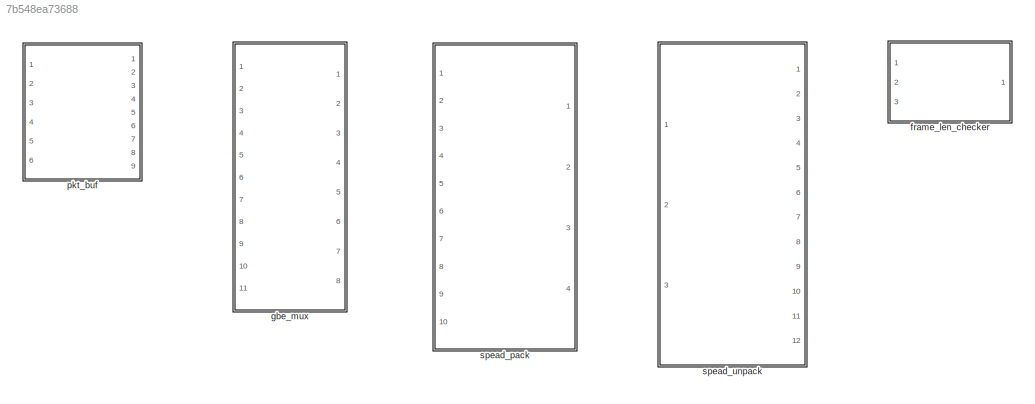
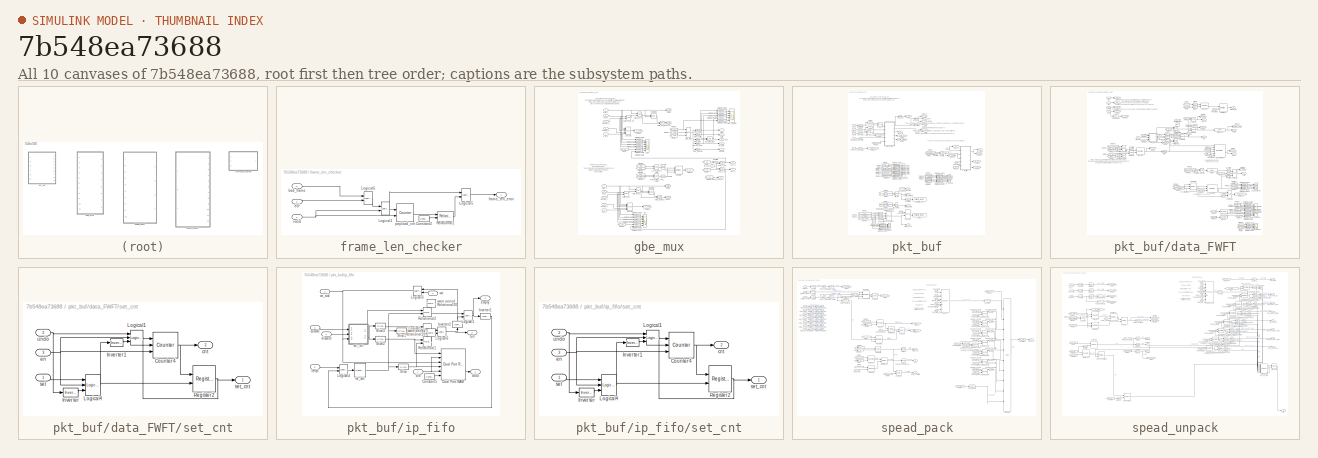
[diagram: thumbnail index - all 10 canvases of the model, root first then tree order]
MODEL slx_7b548ea73688
KIND library
CONFIG AbsTol = auto
CONFIG EnableMultiTasking = off
CONFIG FixedStep = auto
CONFIG MaxStep = auto
CONFIG MinStep = auto
CONFIG RelTol = 1e-3
CONFIG SampleTimeConstraint = Unconstrained
CONFIG Solver = ode45
CONFIG SolverName = ode45
CONFIG StartTime = 0.0
CONFIG StopTime = 10.0
BLOCK [SubSystem] frame_len_checker
  Ports = [3, 1]
  RequestExecContextInheritance = off
  Tag = casper:frame_len_checker
BLOCK [Reference] frame_len_checker/Constant2  REF=xbsIndex_r4/Constant
  Ports = [0, 1]
  SourceBlock = xbsIndex_r4/Constant
  SourceType = Xilinx Constant Block Block
BLOCK [Reference] frame_len_checker/Logical1  REF=xbsIndex_r4/Logical
  Ports = [2, 1]
  SourceBlock = xbsIndex_r4/Logical
  SourceType = Xilinx Logical Block Block
BLOCK [Reference] frame_len_checker/Logical5  REF=xbsIndex_r4/Logical
  Ports = [2, 1]
  SourceBlock = xbsIndex_r4/Logical
  SourceType = Xilinx Logical Block Block
BLOCK [Reference] frame_len_checker/Logical6  REF=xbsIndex_r4/Logical
  Ports = [2, 1]
  SourceBlock = xbsIndex_r4/Logical
  SourceType = Xilinx Logical Block Block
BLOCK [Reference] frame_len_checker/Relational1  REF=xbsIndex_r4/Relational
  Ports = [2, 1]
  SourceBlock = xbsIndex_r4/Relational
  SourceType = Xilinx Arithmetic Relational Operator Block
BLOCK [Inport] frame_len_checker/bad_frame
  IconDisplay = Port number
  Port = 3
BLOCK [Inport] frame_len_checker/eof
  IconDisplay = Port number
  Port = 2
BLOCK [Outport] frame_len_checker/frame_len_error
  IconDisplay = Port number
BLOCK [Reference] frame_len_checker/payload_cnt  REF=xbsIndex_r4/Counter
  Ports = [2, 1]
  SourceBlock = xbsIndex_r4/Counter
  SourceType = Xilinx Counter Block
BLOCK [Inport] frame_len_checker/valid
  IconDisplay = Port number
BLOCK [SubSystem] gbe_mux
  Ports = [11, 8]
  RequestExecContextInheritance = off
BLOCK [Reference] gbe_mux/0_eof_AND_1_not_empty  REF=xbsIndex_r4/Logical
  Ports = [2, 1]
  SourceBlock = xbsIndex_r4/Logical
  SourceType = Xilinx Logical Block Block
BLOCK [Reference] gbe_mux/1_eof_AND_0_valid  REF=xbsIndex_r4/Logical
  Ports = [2, 1]
  SourceBlock = xbsIndex_r4/Logical
  SourceType = Xilinx Logical Block Block
BLOCK [Reference] gbe_mux/Concat1  REF=xbsIndex_r4/Concat
  Ports = [5, 1]
  SourceBlock = xbsIndex_r4/Concat
  SourceType = Xilinx Bus Concatenator Block
BLOCK [Reference] gbe_mux/Concat2  REF=xbsIndex_r4/Concat
  Ports = [5, 1]
  SourceBlock = xbsIndex_r4/Concat
  SourceType = Xilinx Bus Concatenator Block
BLOCK [Reference] gbe_mux/Convert3  REF=xbsIndex_r4/Convert
  Ports = [1, 1]
  SourceBlock = xbsIndex_r4/Convert
  SourceType = Xilinx Type Converter Block
BLOCK [Reference] gbe_mux/Convert4  REF=xbsIndex_r4/Convert
  Ports = [1, 1]
  SourceBlock = xbsIndex_r4/Convert
  SourceType = Xilinx Type Converter Block
BLOCK [From] gbe_mux/From1
  CloseFcn = tagdialog Close
  GotoTag = in_sel
BLOCK [From] gbe_mux/From15
  CloseFcn = tagdialog Close
  GotoTag = in_sel
BLOCK [From] gbe_mux/From19
  CloseFcn = tagdialog Close
  GotoTag = valid1
BLOCK [From] gbe_mux/From2
  CloseFcn = tagdialog Close
  GotoTag = in_sel
BLOCK [From] gbe_mux/From20
  CloseFcn = tagdialog Close
  GotoTag = valid0
BLOCK [From] gbe_mux/From21
  CloseFcn = tagdialog Close
  GotoTag = eof0
BLOCK [From] gbe_mux/From23
  CloseFcn = tagdialog Close
  GotoTag = eof1
BLOCK [From] gbe_mux/From24
  CloseFcn = tagdialog Close
  GotoTag = d_out0
BLOCK [From] gbe_mux/From25
  CloseFcn = tagdialog Close
  GotoTag = in_sel
BLOCK [From] gbe_mux/From3
  CloseFcn = tagdialog Close
  GotoTag = in_sel
BLOCK [From] gbe_mux/From32
  CloseFcn = tagdialog Close
  GotoTag = d_out1
BLOCK [From] gbe_mux/From43
  CloseFcn = tagdialog Close
  GotoTag = in_sel
BLOCK [Reference] gbe_mux/Gateway Out1  REF=xbsIndex_r4/Gateway Out
  Ports = [1, 1]
  SourceBlock = xbsIndex_r4/Gateway Out
  SourceType = Xilinx Gateway Out Block
BLOCK [Reference] gbe_mux/Gateway Out10  REF=xbsIndex_r4/Gateway Out
  Ports = [1, 1]
  SourceBlock = xbsIndex_r4/Gateway Out
  SourceType = Xilinx Gateway Out Block
BLOCK [Reference] gbe_mux/Gateway Out11  REF=xbsIndex_r4/Gateway Out
  Ports = [1, 1]
  SourceBlock = xbsIndex_r4/Gateway Out
  SourceType = Xilinx Gateway Out Block
BLOCK [Reference] gbe_mux/Gateway Out12  REF=xbsIndex_r4/Gateway Out
  Ports = [1, 1]
  SourceBlock = xbsIndex_r4/Gateway Out
  SourceType = Xilinx Gateway Out Block
BLOCK [Reference] gbe_mux/Gateway Out13  REF=xbsIndex_r4/Gateway Out
  Ports = [1, 1]
  SourceBlock = xbsIndex_r4/Gateway Out
  SourceType = Xilinx Gateway Out Block
BLOCK [Reference] gbe_mux/Gateway Out14  REF=xbsIndex_r4/Gateway Out
  Ports = [1, 1]
  SourceBlock = xbsIndex_r4/Gateway Out
  SourceType = Xilinx Gateway Out Block
BLOCK [Reference] gbe_mux/Gateway Out15  REF=xbsIndex_r4/Gateway Out
  Ports = [1, 1]
  SourceBlock = xbsIndex_r4/Gateway Out
  SourceType = Xilinx Gateway Out Block
BLOCK [Reference] gbe_mux/Gateway Out16  REF=xbsIndex_r4/Gateway Out
  Ports = [1, 1]
  SourceBlock = xbsIndex_r4/Gateway Out
  SourceType = Xilinx Gateway Out Block
BLOCK [Reference] gbe_mux/Gateway Out17  REF=xbsIndex_r4/Gateway Out
  Ports = [1, 1]
  SourceBlock = xbsIndex_r4/Gateway Out
  SourceType = Xilinx Gateway Out Block
BLOCK [Reference] gbe_mux/Gateway Out2  REF=xbsIndex_r4/Gateway Out
  Ports = [1, 1]
  SourceBlock = xbsIndex_r4/Gateway Out
  SourceType = Xilinx Gateway Out Block
BLOCK [Reference] gbe_mux/Gateway Out3  REF=xbsIndex_r4/Gateway Out
  Ports = [1, 1]
  SourceBlock = xbsIndex_r4/Gateway Out
  SourceType = Xilinx Gateway Out Block
BLOCK [Reference] gbe_mux/Gateway Out4  REF=xbsIndex_r4/Gateway Out
  Ports = [1, 1]
  SourceBlock = xbsIndex_r4/Gateway Out
  SourceType = Xilinx Gateway Out Block
BLOCK [Reference] gbe_mux/Gateway Out5  REF=xbsIndex_r4/Gateway Out
  Ports = [1, 1]
  SourceBlock = xbsIndex_r4/Gateway Out
  SourceType = Xilinx Gateway Out Block
BLOCK [Reference] gbe_mux/Gateway Out6  REF=xbsIndex_r4/Gateway Out
  Ports = [1, 1]
  SourceBlock = xbsIndex_r4/Gateway Out
  SourceType = Xilinx Gateway Out Block
BLOCK [Reference] gbe_mux/Gateway Out7  REF=xbsIndex_r4/Gateway Out
  Ports = [1, 1]
  SourceBlock = xbsIndex_r4/Gateway Out
  SourceType = Xilinx Gateway Out Block
BLOCK [Reference] gbe_mux/Gateway Out8  REF=xbsIndex_r4/Gateway Out
  Ports = [1, 1]
  SourceBlock = xbsIndex_r4/Gateway Out
  SourceType = Xilinx Gateway Out Block
BLOCK [Reference] gbe_mux/Gateway Out9  REF=xbsIndex_r4/Gateway Out
  Ports = [1, 1]
  SourceBlock = xbsIndex_r4/Gateway Out
  SourceType = Xilinx Gateway Out Block
BLOCK [Goto] gbe_mux/Goto1
  GotoTag = valid1
BLOCK [Goto] gbe_mux/Goto11
  GotoTag = eof1
BLOCK [Goto] gbe_mux/Goto12
  GotoTag = in_sel
BLOCK [Goto] gbe_mux/Goto13
  GotoTag = d_out0
BLOCK [Goto] gbe_mux/Goto16
  GotoTag = d_out1
BLOCK [Goto] gbe_mux/Goto2
  GotoTag = valid0
BLOCK [Goto] gbe_mux/Goto3
  GotoTag = eof0
BLOCK [Reference] gbe_mux/Inverter2  REF=xbsIndex_r4/Inverter
  Ports = [1, 1]
  SourceBlock = xbsIndex_r4/Inverter
  SourceType = Xilinx Inverter Block
BLOCK [Reference] gbe_mux/Register  REF=xbsIndex_r4/Register
  Ports = [3, 1]
  SourceBlock = xbsIndex_r4/Register
  SourceType = Xilinx Register Block
BLOCK [Reference] gbe_mux/Register1  REF=xbsIndex_r4/Register
  Ports = [2, 1]
  SourceBlock = xbsIndex_r4/Register
  SourceType = Xilinx Register Block
BLOCK [Reference] gbe_mux/Register2  REF=xbsIndex_r4/Register
  Ports = [2, 1]
  SourceBlock = xbsIndex_r4/Register
  SourceType = Xilinx Register Block
BLOCK [Outport] gbe_mux/ack_0
  IconDisplay = Port number
  Port = 6
BLOCK [Reference] gbe_mux/ack_0_en  REF=xbsIndex_r4/Logical
  Ports = [2, 1]
  SourceBlock = xbsIndex_r4/Logical
  SourceType = Xilinx Logical Block Block
BLOCK [Outport] gbe_mux/ack_1
  IconDisplay = Port number
  Port = 7
BLOCK [Reference] gbe_mux/ack_1_en  REF=xbsIndex_r4/Logical
  Ports = [2, 1]
  SourceBlock = xbsIndex_r4/Logical
  SourceType = Xilinx Logical Block Block
BLOCK [Inport] gbe_mux/d_in_0
  IconDisplay = Port number
BLOCK [Inport] gbe_mux/d_in_1
  IconDisplay = Port number
  Port = 6
BLOCK [Outport] gbe_mux/data
  IconDisplay = Port number
BLOCK [Reference] gbe_mux/data_mux  REF=xbsIndex_r4/Mux
  Ports = [3, 1]
  SourceBlock = xbsIndex_r4/Mux
  SourceType = Xilinx Bus Multiplexer Block
BLOCK [Inport] gbe_mux/dest_ip_0
  IconDisplay = Port number
  Port = 3
BLOCK [Inport] gbe_mux/dest_ip_1
  IconDisplay = Port number
  Port = 8
BLOCK [Outport] gbe_mux/discard
  IconDisplay = Port number
  Port = 5
BLOCK [Inport] gbe_mux/discard_0
  IconDisplay = Port number
  Port = 5
BLOCK [Inport] gbe_mux/discard_1
  IconDisplay = Port number
  Port = 10
BLOCK [Outport] gbe_mux/eof
  IconDisplay = Port number
  Port = 4
BLOCK [Inport] gbe_mux/eof_0
  IconDisplay = Port number
  Port = 4
BLOCK [Inport] gbe_mux/eof_1
  IconDisplay = Port number
  Port = 9
BLOCK [Reference] gbe_mux/eof_valid_mux  REF=xbsIndex_r4/Logical
  Ports = [2, 1]
  SourceBlock = xbsIndex_r4/Logical
  SourceType = Xilinx Logical Block Block
BLOCK [Scope] gbe_mux/in0
  Floating = off
  NumInputPorts = 6
  Ports = [6]
  ScopeSpecificationString = Simulink.scopes.TimeScopeBlockCfg('CurrentConfiguration', extmgr.ConfigurationSet(extmgr.Configuration('Core','General UI',true),extmgr.Configuration('Core','Source UI',true),extmgr.Configuration('Sources','WiredSimulink',true,'DataLoggingVariableName','ScopeData4','DataLoggingSaveFormat','StructureWithTime','DataLoggingDecimation','1','DataLoggingDecimateData',true),extmgr.Configuration('Visuals'...<+4954ch>
BLOCK [Scope] gbe_mux/in1
  Floating = off
  NumInputPorts = 6
  Ports = [6]
  ScopeSpecificationString = Simulink.scopes.TimeScopeBlockCfg('CurrentConfiguration', extmgr.ConfigurationSet(extmgr.Configuration('Core','General UI',true),extmgr.Configuration('Core','Source UI',true),extmgr.Configuration('Sources','WiredSimulink',true,'DataLoggingVariableName','ScopeData1','DataLoggingSaveFormat','StructureWithTime','DataLoggingDecimation','1','DataLoggingDecimateData',true),extmgr.Configuration('Visuals'...<+4954ch>
BLOCK [Outport] gbe_mux/ip_addr
  IconDisplay = Port number
  Port = 3
BLOCK [Reference] gbe_mux/mux_data  REF=xbsIndex_r4/Slice
  Ports = [1, 1]
  SourceBlock = xbsIndex_r4/Slice
  SourceType = Xilinx Bit Slice Extractor Block
BLOCK [Reference] gbe_mux/mux_discard  REF=xbsIndex_r4/Slice
  Ports = [1, 1]
  SourceBlock = xbsIndex_r4/Slice
  SourceType = Xilinx Bit Slice Extractor Block
BLOCK [Reference] gbe_mux/mux_eof  REF=xbsIndex_r4/Slice
  Ports = [1, 1]
  SourceBlock = xbsIndex_r4/Slice
  SourceType = Xilinx Bit Slice Extractor Block
BLOCK [Reference] gbe_mux/mux_ip_addr  REF=xbsIndex_r4/Slice
  Ports = [1, 1]
  SourceBlock = xbsIndex_r4/Slice
  SourceType = Xilinx Bit Slice Extractor Block
BLOCK [Scope] gbe_mux/mux_out_raw
  Floating = off
  NumInputPorts = 5
  Ports = [5]
  ScopeSpecificationString = Simulink.scopes.TimeScopeBlockCfg('CurrentConfiguration', extmgr.ConfigurationSet(extmgr.Configuration('Core','General UI',true),extmgr.Configuration('Core','Source UI',true),extmgr.Configuration('Sources','WiredSimulink',true,'DataLoggingVariableName','ScopeData5','DataLoggingSaveFormat','StructureWithTime','DataLoggingDecimation','1','DataLoggingDecimateData',true),extmgr.Configuration('Visuals'...<+4307ch>
BLOCK [Reference] gbe_mux/mux_valid  REF=xbsIndex_r4/Slice
  Ports = [1, 1]
  SourceBlock = xbsIndex_r4/Slice
  SourceType = Xilinx Bit Slice Extractor Block
BLOCK [Inport] gbe_mux/rd_ack
  IconDisplay = Port number
  Port = 11
BLOCK [Outport] gbe_mux/status_input_sel
  IconDisplay = Port number
  Port = 8
BLOCK [Outport] gbe_mux/valid
  IconDisplay = Port number
  Port = 2
BLOCK [Inport] gbe_mux/valid_0
  IconDisplay = Port number
  Port = 2
BLOCK [Inport] gbe_mux/valid_1
  IconDisplay = Port number
  Port = 7
BLOCK [Reference] gbe_mux/valid_eof_0  REF=xbsIndex_r4/Logical
  Ports = [2, 1]
  SourceBlock = xbsIndex_r4/Logical
  SourceType = Xilinx Logical Block Block
BLOCK [Reference] gbe_mux/valid_eof_0_de  REF=xbsIndex_r4/Logical
  Ports = [2, 1]
  SourceBlock = xbsIndex_r4/Logical
  SourceType = Xilinx Logical Block Block
BLOCK [Reference] gbe_mux/valid_eof_1  REF=xbsIndex_r4/Logical
  Ports = [2, 1]
  SourceBlock = xbsIndex_r4/Logical
  SourceType = Xilinx Logical Block Block
BLOCK [Reference] gbe_mux/valid_eof_2  REF=xbsIndex_r4/Logical
  Ports = [2, 1]
  SourceBlock = xbsIndex_r4/Logical
  SourceType = Xilinx Logical Block Block
BLOCK [Reference] gbe_mux/valid_eof_ins0  REF=xbsIndex_r4/Logical
  Ports = [2, 1]
  SourceBlock = xbsIndex_r4/Logical
  SourceType = Xilinx Logical Block Block
BLOCK [Reference] gbe_mux/valid_eof_ins1  REF=xbsIndex_r4/Logical
  Ports = [2, 1]
  SourceBlock = xbsIndex_r4/Logical
  SourceType = Xilinx Logical Block Block
BLOCK [SubSystem] pkt_buf
  AttributesFormatString = Max 1024 data words.\nMax 32 pkts.
  Ports = [6, 9]
  RequestExecContextInheritance = off
BLOCK [Reference] pkt_buf/Concat  REF=xbsIndex_r4/Concat
  Ports = [2, 1]
  SourceBlock = xbsIndex_r4/Concat
  SourceType = Xilinx Bus Concatenator Block
BLOCK [Reference] pkt_buf/Concat3  REF=xbsIndex_r4/Concat
  Ports = [2, 1]
  SourceBlock = xbsIndex_r4/Concat
  SourceType = Xilinx Bus Concatenator Block
BLOCK [Reference] pkt_buf/Concat_status  REF=xbsIndex_r4/Concat
  Ports = [4, 1]
  SourceBlock = xbsIndex_r4/Concat
  SourceType = Xilinx Bus Concatenator Block
BLOCK [Reference] pkt_buf/Constant13  REF=xbsIndex_r4/Constant
  Ports = [0, 1]
  SourceBlock = xbsIndex_r4/Constant
  SourceType = Xilinx Constant Block Block
BLOCK [Reference] pkt_buf/Constant7  REF=xbsIndex_r4/Constant
  Ports = [0, 1]
  SourceBlock = xbsIndex_r4/Constant
  SourceType = Xilinx Constant Block Block
BLOCK [Reference] pkt_buf/Constant9  REF=xbsIndex_r4/Constant
  Ports = [0, 1]
  SourceBlock = xbsIndex_r4/Constant
  SourceType = Xilinx Constant Block Block
BLOCK [Reference] pkt_buf/Convert  REF=xbsIndex_r4/Convert
  Ports = [1, 1]
  SourceBlock = xbsIndex_r4/Convert
  SourceType = Xilinx Type Converter Block
BLOCK [Reference] pkt_buf/Convert1  REF=xbsIndex_r4/Convert
  Ports = [1, 1]
  SourceBlock = xbsIndex_r4/Convert
  SourceType = Xilinx Type Converter Block
BLOCK [Reference] pkt_buf/Convert2  REF=xbsIndex_r4/Convert
  Ports = [1, 1]
  SourceBlock = xbsIndex_r4/Convert
  SourceType = Xilinx Type Converter Block
BLOCK [Reference] pkt_buf/Convert3  REF=xbsIndex_r4/Convert
  Ports = [1, 1]
  SourceBlock = xbsIndex_r4/Convert
  SourceType = Xilinx Type Converter Block
BLOCK [Reference] pkt_buf/Convert4  REF=xbsIndex_r4/Convert
  Ports = [1, 1]
  SourceBlock = xbsIndex_r4/Convert
  SourceType = Xilinx Type Converter Block
BLOCK [Reference] pkt_buf/Convert5  REF=xbsIndex_r4/Convert
  Ports = [1, 1]
  SourceBlock = xbsIndex_r4/Convert
  SourceType = Xilinx Type Converter Block
BLOCK [Reference] pkt_buf/Convert8  REF=xbsIndex_r4/Convert
  Ports = [1, 1]
  SourceBlock = xbsIndex_r4/Convert
  SourceType = Xilinx Type Converter Block
BLOCK [Reference] pkt_buf/Convert9  REF=xbsIndex_r4/Convert
  Ports = [1, 1]
  SourceBlock = xbsIndex_r4/Convert
  SourceType = Xilinx Type Converter Block
BLOCK [From] pkt_buf/From1
  CloseFcn = tagdialog Close
  GotoTag = data_full
BLOCK [From] pkt_buf/From10
  CloseFcn = tagdialog Close
  GotoTag = eof_out
BLOCK [From] pkt_buf/From11
  CloseFcn = tagdialog Close
  GotoTag = d_out
BLOCK [From] pkt_buf/From12
  CloseFcn = tagdialog Close
  GotoTag = v_out
BLOCK [From] pkt_buf/From13
  CloseFcn = tagdialog Close
  GotoTag = ip_out
BLOCK [From] pkt_buf/From14
  CloseFcn = tagdialog Close
  GotoTag = ip_in
BLOCK [From] pkt_buf/From15
  CloseFcn = tagdialog Close
  GotoTag = ip_in
BLOCK [From] pkt_buf/From16
  CloseFcn = tagdialog Close
  GotoTag = ip_fetch
BLOCK [From] pkt_buf/From17
  CloseFcn = tagdialog Close
  GotoTag = ip_out
BLOCK [From] pkt_buf/From18
  CloseFcn = tagdialog Close
  GotoTag = eof_out
BLOCK [From] pkt_buf/From19
  CloseFcn = tagdialog Close
  GotoTag = data_ack
BLOCK [From] pkt_buf/From2
  CloseFcn = tagdialog Close
  GotoTag = in_valid_eof
BLOCK [From] pkt_buf/From20
  CloseFcn = tagdialog Close
  GotoTag = ip_commit
BLOCK [From] pkt_buf/From21
  CloseFcn = tagdialog Close
  GotoTag = data_ack
BLOCK [From] pkt_buf/From22
  CloseFcn = tagdialog Close
  GotoTag = ip_fetch
BLOCK [From] pkt_buf/From23
  CloseFcn = tagdialog Close
  GotoTag = data_full
BLOCK [From] pkt_buf/From26
  CloseFcn = tagdialog Close
  GotoTag = data_ack
BLOCK [From] pkt_buf/From3
  CloseFcn = tagdialog Close
  GotoTag = in_valid_eof
BLOCK [From] pkt_buf/From39
  CloseFcn = tagdialog Close
  GotoTag = data_full
BLOCK [From] pkt_buf/From4
  CloseFcn = tagdialog Close
  GotoTag = d_in
BLOCK [From] pkt_buf/From40
  CloseFcn = tagdialog Close
  GotoTag = ip_empty
BLOCK [From] pkt_buf/From41
  CloseFcn = tagdialog Close
  GotoTag = ip_full
BLOCK [From] pkt_buf/From42
  CloseFcn = tagdialog Close
  GotoTag = data_empty
BLOCK [From] pkt_buf/From5
  CloseFcn = tagdialog Close
  GotoTag = v_in
BLOCK [From] pkt_buf/From6
  CloseFcn = tagdialog Close
  GotoTag = data_full
BLOCK [From] pkt_buf/From7
  CloseFcn = tagdialog Close
  GotoTag = ip_empty
BLOCK [From] pkt_buf/From8
  CloseFcn = tagdialog Close
  GotoTag = ip_full
BLOCK [From] pkt_buf/From9
  CloseFcn = tagdialog Close
  GotoTag = data_empty
BLOCK [Reference] pkt_buf/Gateway Out1  REF=xbsIndex_r4/Gateway Out
  Ports = [1, 1]
  SourceBlock = xbsIndex_r4/Gateway Out
  SourceType = Xilinx Gateway Out Block
BLOCK [Reference] pkt_buf/Gateway Out10  REF=xbsIndex_r4/Gateway Out
  Ports = [1, 1]
  SourceBlock = xbsIndex_r4/Gateway Out
  SourceType = Xilinx Gateway Out Block
BLOCK [Reference] pkt_buf/Gateway Out11  REF=xbsIndex_r4/Gateway Out
  Ports = [1, 1]
  SourceBlock = xbsIndex_r4/Gateway Out
  SourceType = Xilinx Gateway Out Block
BLOCK [Reference] pkt_buf/Gateway Out12  REF=xbsIndex_r4/Gateway Out
  Ports = [1, 1]
  SourceBlock = xbsIndex_r4/Gateway Out
  SourceType = Xilinx Gateway Out Block
BLOCK [Reference] pkt_buf/Gateway Out13  REF=xbsIndex_r4/Gateway Out
  Ports = [1, 1]
  SourceBlock = xbsIndex_r4/Gateway Out
  SourceType = Xilinx Gateway Out Block
BLOCK [Reference] pkt_buf/Gateway Out14  REF=xbsIndex_r4/Gateway Out
  Ports = [1, 1]
  SourceBlock = xbsIndex_r4/Gateway Out
  SourceType = Xilinx Gateway Out Block
BLOCK [Reference] pkt_buf/Gateway Out15  REF=xbsIndex_r4/Gateway Out
  Ports = [1, 1]
  SourceBlock = xbsIndex_r4/Gateway Out
  SourceType = Xilinx Gateway Out Block
BLOCK [Reference] pkt_buf/Gateway Out16  REF=xbsIndex_r4/Gateway Out
  Ports = [1, 1]
  SourceBlock = xbsIndex_r4/Gateway Out
  SourceType = Xilinx Gateway Out Block
BLOCK [Reference] pkt_buf/Gateway Out17  REF=xbsIndex_r4/Gateway Out
  Ports = [1, 1]
  SourceBlock = xbsIndex_r4/Gateway Out
  SourceType = Xilinx Gateway Out Block
BLOCK [Reference] pkt_buf/Gateway Out18  REF=xbsIndex_r4/Gateway Out
  Ports = [1, 1]
  SourceBlock = xbsIndex_r4/Gateway Out
  SourceType = Xilinx Gateway Out Block
BLOCK [Reference] pkt_buf/Gateway Out19  REF=xbsIndex_r4/Gateway Out
  Ports = [1, 1]
  SourceBlock = xbsIndex_r4/Gateway Out
  SourceType = Xilinx Gateway Out Block
BLOCK [Reference] pkt_buf/Gateway Out2  REF=xbsIndex_r4/Gateway Out
  Ports = [1, 1]
  SourceBlock = xbsIndex_r4/Gateway Out
  SourceType = Xilinx Gateway Out Block
BLOCK [Reference] pkt_buf/Gateway Out24  REF=xbsIndex_r4/Gateway Out
  Ports = [1, 1]
  SourceBlock = xbsIndex_r4/Gateway Out
  SourceType = Xilinx Gateway Out Block
BLOCK [Reference] pkt_buf/Gateway Out3  REF=xbsIndex_r4/Gateway Out
  Ports = [1, 1]
  SourceBlock = xbsIndex_r4/Gateway Out
  SourceType = Xilinx Gateway Out Block
BLOCK [Reference] pkt_buf/Gateway Out4  REF=xbsIndex_r4/Gateway Out
  Ports = [1, 1]
  SourceBlock = xbsIndex_r4/Gateway Out
  SourceType = Xilinx Gateway Out Block
BLOCK [Reference] pkt_buf/Gateway Out5  REF=xbsIndex_r4/Gateway Out
  Ports = [1, 1]
  SourceBlock = xbsIndex_r4/Gateway Out
  SourceType = Xilinx Gateway Out Block
BLOCK [Reference] pkt_buf/Gateway Out6  REF=xbsIndex_r4/Gateway Out
  Ports = [1, 1]
  SourceBlock = xbsIndex_r4/Gateway Out
  SourceType = Xilinx Gateway Out Block
BLOCK [Reference] pkt_buf/Gateway Out7  REF=xbsIndex_r4/Gateway Out
  Ports = [1, 1]
  SourceBlock = xbsIndex_r4/Gateway Out
  SourceType = Xilinx Gateway Out Block
BLOCK [Reference] pkt_buf/Gateway Out8  REF=xbsIndex_r4/Gateway Out
  Ports = [1, 1]
  SourceBlock = xbsIndex_r4/Gateway Out
  SourceType = Xilinx Gateway Out Block
BLOCK [Reference] pkt_buf/Gateway Out9  REF=xbsIndex_r4/Gateway Out
  Ports = [1, 1]
  SourceBlock = xbsIndex_r4/Gateway Out
  SourceType = Xilinx Gateway Out Block
BLOCK [Goto] pkt_buf/Goto1
  GotoTag = ip_fetch
BLOCK [Goto] pkt_buf/Goto11
  GotoTag = v_out
BLOCK [Goto] pkt_buf/Goto12
  GotoTag = eof_out
BLOCK [Goto] pkt_buf/Goto13
  GotoTag = ip_out
BLOCK [Goto] pkt_buf/Goto14
  GotoTag = data_ack
BLOCK [Goto] pkt_buf/Goto15
  GotoTag = ip_in
BLOCK [Goto] pkt_buf/Goto16
  GotoTag = ip_commit
BLOCK [Goto] pkt_buf/Goto2
  GotoTag = data_empty
BLOCK [Goto] pkt_buf/Goto3
  GotoTag = ip_full
BLOCK [Goto] pkt_buf/Goto4
  GotoTag = in_valid_eof
BLOCK [Goto] pkt_buf/Goto5
  GotoTag = d_in
BLOCK [Goto] pkt_buf/Goto6
  GotoTag = data_full
BLOCK [Goto] pkt_buf/Goto7
  GotoTag = ip_empty
BLOCK [Goto] pkt_buf/Goto8
  GotoTag = v_in
BLOCK [Goto] pkt_buf/Goto9
  GotoTag = d_out
BLOCK [Reference] pkt_buf/Inverter4  REF=xbsIndex_r4/Inverter
  Ports = [1, 1]
  SourceBlock = xbsIndex_r4/Inverter
  SourceType = Xilinx Inverter Block
BLOCK [Reference] pkt_buf/Reinterpret  REF=xbsIndex_r4/Reinterpret
  Ports = [1, 1]
  SourceBlock = xbsIndex_r4/Reinterpret
  SourceType = Xilinx Type Reinterpreter Block
BLOCK [Outport] pkt_buf/ack_in
  IconDisplay = Port number
  Port = 8
BLOCK [Inport] pkt_buf/ack_out
  IconDisplay = Port number
  Port = 6
BLOCK [Reference] pkt_buf/buf_data3  REF=xbsIndex_r4/Slice
  Ports = [1, 1]
  SourceBlock = xbsIndex_r4/Slice
  SourceType = Xilinx Bit Slice Extractor Block
BLOCK [Reference] pkt_buf/buf_eof1  REF=xbsIndex_r4/Slice
  Ports = [1, 1]
  SourceBlock = xbsIndex_r4/Slice
  SourceType = Xilinx Bit Slice Extractor Block
BLOCK [Reference] pkt_buf/buf_eof3  REF=xbsIndex_r4/Slice
  Ports = [1, 1]
  SourceBlock = xbsIndex_r4/Slice
  SourceType = Xilinx Bit Slice Extractor Block
BLOCK [Outport] pkt_buf/buffer_empty
  IconDisplay = Port number
  Port = 7
BLOCK [Outport] pkt_buf/buffer_overflow
  IconDisplay = Port number
  Port = 6
BLOCK [Reference] pkt_buf/commit  REF=xbsIndex_r4/Logical
  Ports = [2, 1]
  SourceBlock = xbsIndex_r4/Logical
  SourceType = Xilinx Logical Block Block
BLOCK [Inport] pkt_buf/d_in
  IconDisplay = Port number
BLOCK [Outport] pkt_buf/data
  IconDisplay = Port number
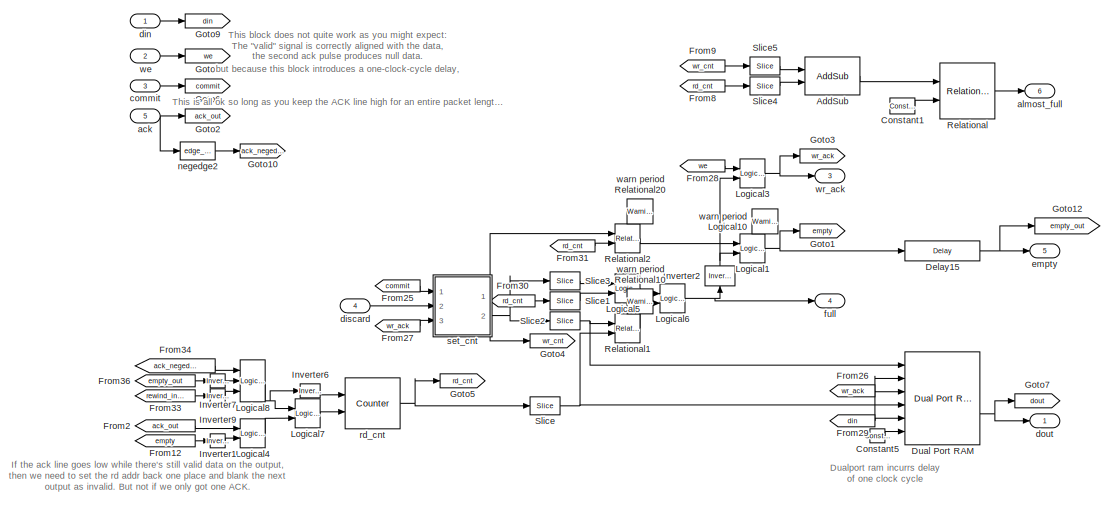
[diagram: pkt_buf/data_FWFT - part 1/2, full width, top band]
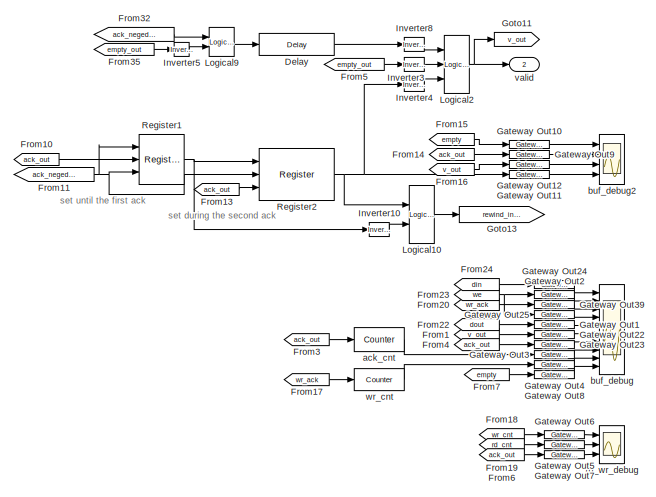
[diagram: pkt_buf/data_FWFT - part 2/2, bottom right region]
BLOCK [SubSystem] pkt_buf/data_FWFT
  AttributesFormatString = Depth: 1024
  Ports = [5, 6]
  RequestExecContextInheritance = off
BLOCK [Reference] pkt_buf/data_FWFT/AddSub  REF=xbsIndex_r4/AddSub
  Ports = [2, 1]
  SourceBlock = xbsIndex_r4/AddSub
  SourceType = Xilinx Adder/Subtracter Block
BLOCK [Reference] pkt_buf/data_FWFT/Constant1  REF=xbsIndex_r4/Constant
  Ports = [0, 1]
  SourceBlock = xbsIndex_r4/Constant
  SourceType = Xilinx Constant Block Block
BLOCK [Reference] pkt_buf/data_FWFT/Constant5  REF=xbsIndex_r4/Constant
  Ports = [0, 1]
  SourceBlock = xbsIndex_r4/Constant
  SourceType = Xilinx Constant Block Block
BLOCK [Reference] pkt_buf/data_FWFT/Delay  REF=xbsIndex_r4/Delay
  Ports = [1, 1]
  SourceBlock = xbsIndex_r4/Delay
  SourceType = Xilinx Delay Block
BLOCK [Reference] pkt_buf/data_FWFT/Delay15  REF=xbsIndex_r4/Delay
  Ports = [1, 1]
  SourceBlock = xbsIndex_r4/Delay
  SourceType = Xilinx Delay Block
BLOCK [Reference] pkt_buf/data_FWFT/Dual Port RAM  REF=xbsIndex_r4/Dual Port RAM
  Ports = [6, 2]
  SourceBlock = xbsIndex_r4/Dual Port RAM
  SourceType = Xilinx Dual Port Random Access Memory Block
BLOCK [From] pkt_buf/data_FWFT/From1
  CloseFcn = tagdialog Close
  GotoTag = v_out
BLOCK [From] pkt_buf/data_FWFT/From10
  CloseFcn = tagdialog Close
  GotoTag = ack_out
BLOCK [From] pkt_buf/data_FWFT/From11
  CloseFcn = tagdialog Close
  GotoTag = ack_negedge
BLOCK [From] pkt_buf/data_FWFT/From12
  CloseFcn = tagdialog Close
  GotoTag = empty
BLOCK [From] pkt_buf/data_FWFT/From13
  CloseFcn = tagdialog Close
  GotoTag = ack_out
BLOCK [From] pkt_buf/data_FWFT/From14
  CloseFcn = tagdialog Close
  GotoTag = ack_out
BLOCK [From] pkt_buf/data_FWFT/From15
  CloseFcn = tagdialog Close
  GotoTag = empty
BLOCK [From] pkt_buf/data_FWFT/From16
  CloseFcn = tagdialog Close
  GotoTag = v_out
BLOCK [From] pkt_buf/data_FWFT/From17
  CloseFcn = tagdialog Close
  GotoTag = wr_ack
BLOCK [From] pkt_buf/data_FWFT/From18
  CloseFcn = tagdialog Close
  GotoTag = wr_cnt
BLOCK [From] pkt_buf/data_FWFT/From19
  CloseFcn = tagdialog Close
  GotoTag = rd_cnt
BLOCK [From] pkt_buf/data_FWFT/From2
  CloseFcn = tagdialog Close
  GotoTag = ack_out
BLOCK [From] pkt_buf/data_FWFT/From20
  CloseFcn = tagdialog Close
  GotoTag = wr_ack
BLOCK [From] pkt_buf/data_FWFT/From22
  CloseFcn = tagdialog Close
  GotoTag = dout
BLOCK [From] pkt_buf/data_FWFT/From23
  CloseFcn = tagdialog Close
  GotoTag = we
BLOCK [From] pkt_buf/data_FWFT/From24
  CloseFcn = tagdialog Close
  GotoTag = din
BLOCK [From] pkt_buf/data_FWFT/From25
  CloseFcn = tagdialog Close
  GotoTag = commit
BLOCK [From] pkt_buf/data_FWFT/From26
  CloseFcn = tagdialog Close
  GotoTag = wr_ack
BLOCK [From] pkt_buf/data_FWFT/From27
  CloseFcn = tagdialog Close
  GotoTag = wr_ack
BLOCK [From] pkt_buf/data_FWFT/From28
  CloseFcn = tagdialog Close
  GotoTag = we
BLOCK [From] pkt_buf/data_FWFT/From29
  CloseFcn = tagdialog Close
  GotoTag = din
BLOCK [From] pkt_buf/data_FWFT/From3
  CloseFcn = tagdialog Close
  GotoTag = ack_out
BLOCK [From] pkt_buf/data_FWFT/From30
  CloseFcn = tagdialog Close
  GotoTag = rd_cnt
BLOCK [From] pkt_buf/data_FWFT/From31
  CloseFcn = tagdialog Close
  GotoTag = rd_cnt
BLOCK [From] pkt_buf/data_FWFT/From32
  CloseFcn = tagdialog Close
  GotoTag = ack_negedge
BLOCK [From] pkt_buf/data_FWFT/From33
  CloseFcn = tagdialog Close
  GotoTag = rewind_inhibit
BLOCK [From] pkt_buf/data_FWFT/From34
  CloseFcn = tagdialog Close
  GotoTag = ack_negedge
BLOCK [From] pkt_buf/data_FWFT/From35
  CloseFcn = tagdialog Close
  GotoTag = empty_out
BLOCK [From] pkt_buf/data_FWFT/From36
  CloseFcn = tagdialog Close
  GotoTag = empty_out
BLOCK [From] pkt_buf/data_FWFT/From4
  CloseFcn = tagdialog Close
  GotoTag = ack_out
BLOCK [From] pkt_buf/data_FWFT/From5
  CloseFcn = tagdialog Close
  GotoTag = empty_out
BLOCK [From] pkt_buf/data_FWFT/From6
  CloseFcn = tagdialog Close
  GotoTag = ack_out
BLOCK [From] pkt_buf/data_FWFT/From7
  CloseFcn = tagdialog Close
  GotoTag = empty
BLOCK [From] pkt_buf/data_FWFT/From8
  CloseFcn = tagdialog Close
  GotoTag = rd_cnt
BLOCK [From] pkt_buf/data_FWFT/From9
  CloseFcn = tagdialog Close
  GotoTag = wr_cnt
BLOCK [Reference] pkt_buf/data_FWFT/Gateway Out1  REF=xbsIndex_r4/Gateway Out
  Ports = [1, 1]
  SourceBlock = xbsIndex_r4/Gateway Out
  SourceType = Xilinx Gateway Out Block
BLOCK [Reference] pkt_buf/data_FWFT/Gateway Out10  REF=xbsIndex_r4/Gateway Out
  Ports = [1, 1]
  SourceBlock = xbsIndex_r4/Gateway Out
  SourceType = Xilinx Gateway Out Block
BLOCK [Reference] pkt_buf/data_FWFT/Gateway Out11  REF=xbsIndex_r4/Gateway Out
  Ports = [1, 1]
  SourceBlock = xbsIndex_r4/Gateway Out
  SourceType = Xilinx Gateway Out Block
BLOCK [Reference] pkt_buf/data_FWFT/Gateway Out12  REF=xbsIndex_r4/Gateway Out
  Ports = [1, 1]
  SourceBlock = xbsIndex_r4/Gateway Out
  SourceType = Xilinx Gateway Out Block
BLOCK [Reference] pkt_buf/data_FWFT/Gateway Out2  REF=xbsIndex_r4/Gateway Out
  Ports = [1, 1]
  SourceBlock = xbsIndex_r4/Gateway Out
  SourceType = Xilinx Gateway Out Block
BLOCK [Reference] pkt_buf/data_FWFT/Gateway Out22  REF=xbsIndex_r4/Gateway Out
  Ports = [1, 1]
  SourceBlock = xbsIndex_r4/Gateway Out
  SourceType = Xilinx Gateway Out Block
BLOCK [Reference] pkt_buf/data_FWFT/Gateway Out23  REF=xbsIndex_r4/Gateway Out
  Ports = [1, 1]
  SourceBlock = xbsIndex_r4/Gateway Out
  SourceType = Xilinx Gateway Out Block
BLOCK [Reference] pkt_buf/data_FWFT/Gateway Out24  REF=xbsIndex_r4/Gateway Out
  Ports = [1, 1]
  SourceBlock = xbsIndex_r4/Gateway Out
  SourceType = Xilinx Gateway Out Block
BLOCK [Reference] pkt_buf/data_FWFT/Gateway Out25  REF=xbsIndex_r4/Gateway Out
  Ports = [1, 1]
  SourceBlock = xbsIndex_r4/Gateway Out
  SourceType = Xilinx Gateway Out Block
BLOCK [Reference] pkt_buf/data_FWFT/Gateway Out3  REF=xbsIndex_r4/Gateway Out
  Ports = [1, 1]
  SourceBlock = xbsIndex_r4/Gateway Out
  SourceType = Xilinx Gateway Out Block
BLOCK [Reference] pkt_buf/data_FWFT/Gateway Out39  REF=xbsIndex_r4/Gateway Out
  Ports = [1, 1]
  SourceBlock = xbsIndex_r4/Gateway Out
  SourceType = Xilinx Gateway Out Block
BLOCK [Reference] pkt_buf/data_FWFT/Gateway Out4  REF=xbsIndex_r4/Gateway Out
  Ports = [1, 1]
  SourceBlock = xbsIndex_r4/Gateway Out
  SourceType = Xilinx Gateway Out Block
BLOCK [Reference] pkt_buf/data_FWFT/Gateway Out5  REF=xbsIndex_r4/Gateway Out
  Ports = [1, 1]
  SourceBlock = xbsIndex_r4/Gateway Out
  SourceType = Xilinx Gateway Out Block
BLOCK [Reference] pkt_buf/data_FWFT/Gateway Out6  REF=xbsIndex_r4/Gateway Out
  Ports = [1, 1]
  SourceBlock = xbsIndex_r4/Gateway Out
  SourceType = Xilinx Gateway Out Block
BLOCK [Reference] pkt_buf/data_FWFT/Gateway Out7  REF=xbsIndex_r4/Gateway Out
  Ports = [1, 1]
  SourceBlock = xbsIndex_r4/Gateway Out
  SourceType = Xilinx Gateway Out Block
BLOCK [Reference] pkt_buf/data_FWFT/Gateway Out8  REF=xbsIndex_r4/Gateway Out
  Ports = [1, 1]
  SourceBlock = xbsIndex_r4/Gateway Out
  SourceType = Xilinx Gateway Out Block
BLOCK [Reference] pkt_buf/data_FWFT/Gateway Out9  REF=xbsIndex_r4/Gateway Out
  Ports = [1, 1]
  SourceBlock = xbsIndex_r4/Gateway Out
  SourceType = Xilinx Gateway Out Block
BLOCK [Goto] pkt_buf/data_FWFT/Goto1
  GotoTag = empty
BLOCK [Goto] pkt_buf/data_FWFT/Goto10
  GotoTag = ack_negedge
BLOCK [Goto] pkt_buf/data_FWFT/Goto11
  GotoTag = v_out
BLOCK [Goto] pkt_buf/data_FWFT/Goto12
  GotoTag = empty_out
BLOCK [Goto] pkt_buf/data_FWFT/Goto13
  GotoTag = rewind_inhibit
BLOCK [Goto] pkt_buf/data_FWFT/Goto2
  GotoTag = ack_out
BLOCK [Goto] pkt_buf/data_FWFT/Goto3
  GotoTag = wr_ack
BLOCK [Goto] pkt_buf/data_FWFT/Goto4
  GotoTag = wr_cnt
BLOCK [Goto] pkt_buf/data_FWFT/Goto5
  GotoTag = rd_cnt
BLOCK [Goto] pkt_buf/data_FWFT/Goto6
  GotoTag = commit
BLOCK [Goto] pkt_buf/data_FWFT/Goto7
  GotoTag = dout
BLOCK [Goto] pkt_buf/data_FWFT/Goto8
  GotoTag = we
BLOCK [Goto] pkt_buf/data_FWFT/Goto9
  GotoTag = din
BLOCK [Reference] pkt_buf/data_FWFT/Inverter1  REF=xbsIndex_r4/Inverter
  Ports = [1, 1]
  SourceBlock = xbsIndex_r4/Inverter
  SourceType = Xilinx Inverter Block
BLOCK [Reference] pkt_buf/data_FWFT/Inverter10  REF=xbsIndex_r4/Inverter
  Ports = [1, 1]
  SourceBlock = xbsIndex_r4/Inverter
  SourceType = Xilinx Inverter Block
BLOCK [Reference] pkt_buf/data_FWFT/Inverter2  REF=xbsIndex_r4/Inverter
  Ports = [1, 1]
  SourceBlock = xbsIndex_r4/Inverter
  SourceType = Xilinx Inverter Block
BLOCK [Reference] pkt_buf/data_FWFT/Inverter3  REF=xbsIndex_r4/Inverter
  Ports = [1, 1]
  SourceBlock = xbsIndex_r4/Inverter
  SourceType = Xilinx Inverter Block
BLOCK [Reference] pkt_buf/data_FWFT/Inverter4  REF=xbsIndex_r4/Inverter
  Ports = [1, 1]
  SourceBlock = xbsIndex_r4/Inverter
  SourceType = Xilinx Inverter Block
BLOCK [Reference] pkt_buf/data_FWFT/Inverter5  REF=xbsIndex_r4/Inverter
  Ports = [1, 1]
  SourceBlock = xbsIndex_r4/Inverter
  SourceType = Xilinx Inverter Block
BLOCK [Reference] pkt_buf/data_FWFT/Inverter6  REF=xbsIndex_r4/Inverter
  Ports = [1, 1]
  SourceBlock = xbsIndex_r4/Inverter
  SourceType = Xilinx Inverter Block
BLOCK [Reference] pkt_buf/data_FWFT/Inverter7  REF=xbsIndex_r4/Inverter
  Ports = [1, 1]
  SourceBlock = xbsIndex_r4/Inverter
  SourceType = Xilinx Inverter Block
BLOCK [Reference] pkt_buf/data_FWFT/Inverter8  REF=xbsIndex_r4/Inverter
  Ports = [1, 1]
  SourceBlock = xbsIndex_r4/Inverter
  SourceType = Xilinx Inverter Block
BLOCK [Reference] pkt_buf/data_FWFT/Inverter9  REF=xbsIndex_r4/Inverter
  Ports = [1, 1]
  SourceBlock = xbsIndex_r4/Inverter
  SourceType = Xilinx Inverter Block
BLOCK [Reference] pkt_buf/data_FWFT/Logical1  REF=xbsIndex_r4/Logical
  Ports = [2, 1]
  SourceBlock = xbsIndex_r4/Logical
  SourceType = Xilinx Logical Block Block
BLOCK [Reference] pkt_buf/data_FWFT/Logical10  REF=xbsIndex_r4/Logical
  Ports = [2, 1]
  SourceBlock = xbsIndex_r4/Logical
  SourceType = Xilinx Logical Block Block
BLOCK [Reference] pkt_buf/data_FWFT/Logical2  REF=xbsIndex_r4/Logical
  Ports = [3, 1]
  SourceBlock = xbsIndex_r4/Logical
  SourceType = Xilinx Logical Block Block
BLOCK [Reference] pkt_buf/data_FWFT/Logical3  REF=xbsIndex_r4/Logical
  Ports = [2, 1]
  SourceBlock = xbsIndex_r4/Logical
  SourceType = Xilinx Logical Block Block
BLOCK [Reference] pkt_buf/data_FWFT/Logical4  REF=xbsIndex_r4/Logical
  Ports = [2, 1]
  SourceBlock = xbsIndex_r4/Logical
  SourceType = Xilinx Logical Block Block
BLOCK [Reference] pkt_buf/data_FWFT/Logical5  REF=xbsIndex_r4/Logical
  Ports = [2, 1]
  SourceBlock = xbsIndex_r4/Logical
  SourceType = Xilinx Logical Block Block
BLOCK [Reference] pkt_buf/data_FWFT/Logical6  REF=xbsIndex_r4/Logical
  Ports = [2, 1]
  SourceBlock = xbsIndex_r4/Logical
  SourceType = Xilinx Logical Block Block
BLOCK [Reference] pkt_buf/data_FWFT/Logical7  REF=xbsIndex_r4/Logical
  Ports = [2, 1]
  SourceBlock = xbsIndex_r4/Logical
  SourceType = Xilinx Logical Block Block
BLOCK [Reference] pkt_buf/data_FWFT/Logical8  REF=xbsIndex_r4/Logical
  Ports = [3, 1]
  SourceBlock = xbsIndex_r4/Logical
  SourceType = Xilinx Logical Block Block
BLOCK [Reference] pkt_buf/data_FWFT/Logical9  REF=xbsIndex_r4/Logical
  Ports = [2, 1]
  SourceBlock = xbsIndex_r4/Logical
  SourceType = Xilinx Logical Block Block
BLOCK [Reference] pkt_buf/data_FWFT/Register1  REF=xbsIndex_r4/Register
  Ports = [3, 1]
  SourceBlock = xbsIndex_r4/Register
  SourceType = Xilinx Register Block
BLOCK [Reference] pkt_buf/data_FWFT/Register2  REF=xbsIndex_r4/Register
  Ports = [3, 1]
  SourceBlock = xbsIndex_r4/Register
  SourceType = Xilinx Register Block
BLOCK [Reference] pkt_buf/data_FWFT/Relational  REF=xbsIndex_r4/Relational
  Ports = [2, 1]
  SourceBlock = xbsIndex_r4/Relational
  SourceType = Xilinx Arithmetic Relational Operator Block
BLOCK [Reference] pkt_buf/data_FWFT/Relational1  REF=xbsIndex_r4/Relational
  Ports = [2, 1]
  SourceBlock = xbsIndex_r4/Relational
  SourceType = Xilinx Arithmetic Relational Operator Block
BLOCK [Reference] pkt_buf/data_FWFT/Relational2  REF=xbsIndex_r4/Relational
  Ports = [2, 1]
  SourceBlock = xbsIndex_r4/Relational
  SourceType = Xilinx Arithmetic Relational Operator Block
BLOCK [Reference] pkt_buf/data_FWFT/Slice  REF=xbsIndex_r4/Slice
  Ports = [1, 1]
  SourceBlock = xbsIndex_r4/Slice
  SourceType = Xilinx Bit Slice Extractor Block
BLOCK [Reference] pkt_buf/data_FWFT/Slice1  REF=xbsIndex_r4/Slice
  Ports = [1, 1]
  SourceBlock = xbsIndex_r4/Slice
  SourceType = Xilinx Bit Slice Extractor Block
BLOCK [Reference] pkt_buf/data_FWFT/Slice2  REF=xbsIndex_r4/Slice
  Ports = [1, 1]
  SourceBlock = xbsIndex_r4/Slice
  SourceType = Xilinx Bit Slice Extractor Block
BLOCK [Reference] pkt_buf/data_FWFT/Slice3  REF=xbsIndex_r4/Slice
  Ports = [1, 1]
  SourceBlock = xbsIndex_r4/Slice
  SourceType = Xilinx Bit Slice Extractor Block
BLOCK [Reference] pkt_buf/data_FWFT/Slice4  REF=xbsIndex_r4/Slice
  Ports = [1, 1]
  SourceBlock = xbsIndex_r4/Slice
  SourceType = Xilinx Bit Slice Extractor Block
BLOCK [Reference] pkt_buf/data_FWFT/Slice5  REF=xbsIndex_r4/Slice
  Ports = [1, 1]
  SourceBlock = xbsIndex_r4/Slice
  SourceType = Xilinx Bit Slice Extractor Block
BLOCK [Inport] pkt_buf/data_FWFT/ack
  IconDisplay = Port number
  Port = 5
BLOCK [Reference] pkt_buf/data_FWFT/ack_cnt  REF=xbsIndex_r4/Counter
  Ports = [1, 1]
  SourceBlock = xbsIndex_r4/Counter
  SourceType = Xilinx Counter Block
BLOCK [Outport] pkt_buf/data_FWFT/almost_full
  IconDisplay = Port number
  Port = 6
BLOCK [Scope] pkt_buf/data_FWFT/buf_debug
  Floating = off
  NumInputPorts = 10
  Ports = [10]
  ScopeSpecificationString = Simulink.scopes.TimeScopeBlockCfg('CurrentConfiguration', extmgr.ConfigurationSet(extmgr.Configuration('Core','General UI',true),extmgr.Configuration('Core','Source UI',true),extmgr.Configuration('Sources','WiredSimulink',true,'DataLoggingVariableName','ScopeData2','DataLoggingSaveFormat','StructureWithTime','DataLoggingDecimation','1','DataLoggingDecimateData',true),extmgr.Configuration('Visuals'...<+7673ch>
BLOCK [Scope] pkt_buf/data_FWFT/buf_debug2
  Floating = off
  NumInputPorts = 4
  Ports = [4]
  ScopeSpecificationString = Simulink.scopes.TimeScopeBlockCfg('CurrentConfiguration', extmgr.ConfigurationSet(extmgr.Configuration('Core','General UI',true),extmgr.Configuration('Core','Source UI',true),extmgr.Configuration('Sources','WiredSimulink',true,'DataLoggingVariableName','ScopeData3','DataLoggingSaveFormat','StructureWithTime','DataLoggingDecimation','1','DataLoggingDecimateData',true),extmgr.Configuration('Visuals'...<+3613ch>
BLOCK [Inport] pkt_buf/data_FWFT/commit
  IconDisplay = Port number
  Port = 3
BLOCK [Inport] pkt_buf/data_FWFT/din
  IconDisplay = Port number
BLOCK [Inport] pkt_buf/data_FWFT/discard
  IconDisplay = Port number
  Port = 4
BLOCK [Outport] pkt_buf/data_FWFT/dout
  IconDisplay = Port number
BLOCK [Outport] pkt_buf/data_FWFT/empty
  IconDisplay = Port number
  Port = 5
BLOCK [Outport] pkt_buf/data_FWFT/full
  IconDisplay = Port number
  Port = 4
BLOCK [Reference] pkt_buf/data_FWFT/negedge2  REF=casper_library_misc/edge_detect  (lib defined in mdl_357510c33b49, mdl_57b5f564ae26, +4 more)
  AttributesFormatString = falling edges\nactive high
  Ports = [1, 1]
  SourceBlock = casper_library_misc/edge_detect
  SourceProductName = CASPER DSP Blockset
  SourceType = edge_detect
  UserDataPersistent = on
BLOCK [Reference] pkt_buf/data_FWFT/rd_cnt  REF=xbsIndex_r4/Counter
  Ports = [2, 1]
  SourceBlock = xbsIndex_r4/Counter
  SourceType = Xilinx Counter Block
BLOCK [Scope] pkt_buf/data_FWFT/rd_wr_debug
  Floating = off
  NumInputPorts = 3
  Ports = [3]
  ScopeSpecificationString = Simulink.scopes.TimeScopeBlockCfg('CurrentConfiguration', extmgr.ConfigurationSet(extmgr.Configuration('Core','General UI',true),extmgr.Configuration('Core','Source UI',true),extmgr.Configuration('Sources','WiredSimulink',true,'DataLoggingVariableName','ScopeData4','DataLoggingSaveFormat','StructureWithTime','DataLoggingDecimation','1','DataLoggingDecimateData',true),extmgr.Configuration('Visuals'...<+2952ch>
BLOCK [SubSystem] pkt_buf/data_FWFT/set_cnt
  Ports = [3, 2]
  RequestExecContextInheritance = off
BLOCK [Reference] pkt_buf/data_FWFT/set_cnt/Counter4  REF=xbsIndex_r4/Counter
  Ports = [3, 1]
  SourceBlock = xbsIndex_r4/Counter
  SourceType = Xilinx Counter Block
BLOCK [Reference] pkt_buf/data_FWFT/set_cnt/Inverter  REF=xbsIndex_r4/Inverter
  Ports = [1, 1]
  SourceBlock = xbsIndex_r4/Inverter
  SourceType = Xilinx Inverter Block
BLOCK [Reference] pkt_buf/data_FWFT/set_cnt/Inverter1  REF=xbsIndex_r4/Inverter
  Ports = [1, 1]
  SourceBlock = xbsIndex_r4/Inverter
  SourceType = Xilinx Inverter Block
BLOCK [Reference] pkt_buf/data_FWFT/set_cnt/Logical1  REF=xbsIndex_r4/Logical
  Ports = [3, 1]
  SourceBlock = xbsIndex_r4/Logical
  SourceType = Xilinx Logical Block Block
BLOCK [Reference] pkt_buf/data_FWFT/set_cnt/Logical4  REF=xbsIndex_r4/Logical
  Ports = [3, 1]
  SourceBlock = xbsIndex_r4/Logical
  SourceType = Xilinx Logical Block Block
BLOCK [Reference] pkt_buf/data_FWFT/set_cnt/Register2  REF=xbsIndex_r4/Register
  Ports = [2, 1]
  SourceBlock = xbsIndex_r4/Register
  SourceType = Xilinx Register Block
BLOCK [Outport] pkt_buf/data_FWFT/set_cnt/cnt
  IconDisplay = Port number
  Port = 2
BLOCK [Inport] pkt_buf/data_FWFT/set_cnt/en
  IconDisplay = Port number
  Port = 3
BLOCK [Inport] pkt_buf/data_FWFT/set_cnt/set
  IconDisplay = Port number
BLOCK [Outport] pkt_buf/data_FWFT/set_cnt/set_cnt
  IconDisplay = Port number
BLOCK [Inport] pkt_buf/data_FWFT/set_cnt/undo
  IconDisplay = Port number
  Port = 2
BLOCK [Outport] pkt_buf/data_FWFT/valid
  IconDisplay = Port number
  Port = 2
BLOCK [Reference] pkt_buf/data_FWFT/warn period Logical10  REF=xbsReplacements_r4/Warning
  Ports = []
  SourceBlock = xbsReplacements_r4/Warning
BLOCK [Reference] pkt_buf/data_FWFT/warn period Relational10  REF=xbsReplacements_r4/Warning
  Ports = []
  SourceBlock = xbsReplacements_r4/Warning
BLOCK [Reference] pkt_buf/data_FWFT/warn period Relational20  REF=xbsReplacements_r4/Warning
  Ports = []
  SourceBlock = xbsReplacements_r4/Warning
BLOCK [Inport] pkt_buf/data_FWFT/we
  IconDisplay = Port number
  Port = 2
BLOCK [Outport] pkt_buf/data_FWFT/wr_ack
  IconDisplay = Port number
  Port = 3
BLOCK [Reference] pkt_buf/data_FWFT/wr_cnt  REF=xbsIndex_r4/Counter
  Ports = [1, 1]
  SourceBlock = xbsIndex_r4/Counter
  SourceType = Xilinx Counter Block
BLOCK [Scope] pkt_buf/data_debug
  Floating = off
  NumInputPorts = 10
  Ports = [10]
  ScopeSpecificationString = Simulink.scopes.TimeScopeBlockCfg('CurrentConfiguration', extmgr.ConfigurationSet(extmgr.Configuration('Core','General UI',true),extmgr.Configuration('Core','Source UI',true),extmgr.Configuration('Sources','WiredSimulink',true,'DataLoggingVariableName','ScopeData8','DataLoggingSaveFormat','StructureWithTime','DataLoggingDecimation','1','DataLoggingDecimateData',true),extmgr.Configuration('Visuals'...<+7667ch>
BLOCK [Inport] pkt_buf/dest_ip_0
  IconDisplay = Port number
  Port = 3
BLOCK [Outport] pkt_buf/discard
  IconDisplay = Port number
  Port = 5
BLOCK [Inport] pkt_buf/discard_in
  IconDisplay = Port number
  Port = 5
BLOCK [Outport] pkt_buf/eof
  IconDisplay = Port number
  Port = 4
BLOCK [Inport] pkt_buf/eof_in
  IconDisplay = Port number
  Port = 4
BLOCK [Reference] pkt_buf/fifo_empty  REF=xbsIndex_r4/Logical
  Ports = [2, 1]
  SourceBlock = xbsIndex_r4/Logical
  SourceType = Xilinx Logical Block Block
BLOCK [Reference] pkt_buf/fifo_full  REF=xbsIndex_r4/Logical
  Ports = [2, 1]
  SourceBlock = xbsIndex_r4/Logical
  SourceType = Xilinx Logical Block Block
BLOCK [Outport] pkt_buf/ip_addr
  IconDisplay = Port number
  Port = 3
BLOCK [Scope] pkt_buf/ip_debug
  Floating = off
  NumInputPorts = 6
  Ports = [6]
  ScopeSpecificationString = Simulink.scopes.TimeScopeBlockCfg('CurrentConfiguration', extmgr.ConfigurationSet(extmgr.Configuration('Core','General UI',true),extmgr.Configuration('Core','Source UI',true),extmgr.Configuration('Sources','WiredSimulink',true,'DataLoggingVariableName','ScopeData9','DataLoggingSaveFormat','StructureWithTime','DataLoggingDecimation','1','DataLoggingDecimateData',true),extmgr.Configuration('Visuals'...<+4954ch>
BLOCK [SubSystem] pkt_buf/ip_fifo
  AttributesFormatString = Depth: 32
  Ports = [5, 4]
  RequestExecContextInheritance = off
BLOCK [Reference] pkt_buf/ip_fifo/Constant5  REF=xbsIndex_r4/Constant
  Ports = [0, 1]
  SourceBlock = xbsIndex_r4/Constant
  SourceType = Xilinx Constant Block Block
BLOCK [Reference] pkt_buf/ip_fifo/Dual Port RAM  REF=xbsIndex_r4/Dual Port RAM
  Ports = [6, 2]
  SourceBlock = xbsIndex_r4/Dual Port RAM
  SourceType = Xilinx Dual Port Random Access Memory Block
BLOCK [Reference] pkt_buf/ip_fifo/Inverter1  REF=xbsIndex_r4/Inverter
  Ports = [1, 1]
  SourceBlock = xbsIndex_r4/Inverter
  SourceType = Xilinx Inverter Block
BLOCK [Reference] pkt_buf/ip_fifo/Inverter2  REF=xbsIndex_r4/Inverter
  Ports = [1, 1]
  SourceBlock = xbsIndex_r4/Inverter
  SourceType = Xilinx Inverter Block
BLOCK [Reference] pkt_buf/ip_fifo/Logical1  REF=xbsIndex_r4/Logical
  Ports = [2, 1]
  SourceBlock = xbsIndex_r4/Logical
  SourceType = Xilinx Logical Block Block
BLOCK [Reference] pkt_buf/ip_fifo/Logical3  REF=xbsIndex_r4/Logical
  Ports = [2, 1]
  SourceBlock = xbsIndex_r4/Logical
  SourceType = Xilinx Logical Block Block
BLOCK [Reference] pkt_buf/ip_fifo/Logical4  REF=xbsIndex_r4/Logical
  Ports = [2, 1]
  SourceBlock = xbsIndex_r4/Logical
  SourceType = Xilinx Logical Block Block
BLOCK [Reference] pkt_buf/ip_fifo/Logical5  REF=xbsIndex_r4/Logical
  Ports = [2, 1]
  SourceBlock = xbsIndex_r4/Logical
  SourceType = Xilinx Logical Block Block
BLOCK [Reference] pkt_buf/ip_fifo/Logical6  REF=xbsIndex_r4/Logical
  Ports = [2, 1]
  SourceBlock = xbsIndex_r4/Logical
  SourceType = Xilinx Logical Block Block
BLOCK [Reference] pkt_buf/ip_fifo/Relational1  REF=xbsIndex_r4/Relational
  Ports = [2, 1]
  SourceBlock = xbsIndex_r4/Relational
  SourceType = Xilinx Arithmetic Relational Operator Block
BLOCK [Reference] pkt_buf/ip_fifo/Relational2  REF=xbsIndex_r4/Relational
  Ports = [2, 1]
  SourceBlock = xbsIndex_r4/Relational
  SourceType = Xilinx Arithmetic Relational Operator Block
BLOCK [Reference] pkt_buf/ip_fifo/Slice  REF=xbsIndex_r4/Slice
  Ports = [1, 1]
  SourceBlock = xbsIndex_r4/Slice
  SourceType = Xilinx Bit Slice Extractor Block
BLOCK [Reference] pkt_buf/ip_fifo/Slice1  REF=xbsIndex_r4/Slice
  Ports = [1, 1]
  SourceBlock = xbsIndex_r4/Slice
  SourceType = Xilinx Bit Slice Extractor Block
BLOCK [Reference] pkt_buf/ip_fifo/Slice2  REF=xbsIndex_r4/Slice
  Ports = [1, 1]
  SourceBlock = xbsIndex_r4/Slice
  SourceType = Xilinx Bit Slice Extractor Block
BLOCK [Reference] pkt_buf/ip_fifo/Slice3  REF=xbsIndex_r4/Slice
  Ports = [1, 1]
  SourceBlock = xbsIndex_r4/Slice
  SourceType = Xilinx Bit Slice Extractor Block
BLOCK [Inport] pkt_buf/ip_fifo/commit
  IconDisplay = Port number
  Port = 3
BLOCK [Inport] pkt_buf/ip_fifo/din
  IconDisplay = Port number
BLOCK [Inport] pkt_buf/ip_fifo/discard
  IconDisplay = Port number
  Port = 4
BLOCK [Outport] pkt_buf/ip_fifo/dout
  IconDisplay = Port number
BLOCK [Outport] pkt_buf/ip_fifo/empty
  IconDisplay = Port number
  Port = 4
BLOCK [Inport] pkt_buf/ip_fifo/fetch
  IconDisplay = Port number
  Port = 5
BLOCK [Outport] pkt_buf/ip_fifo/full
  IconDisplay = Port number
  Port = 3
BLOCK [Reference] pkt_buf/ip_fifo/rd_cnt  REF=xbsIndex_r4/Counter
  Ports = [1, 1]
  SourceBlock = xbsIndex_r4/Counter
  SourceType = Xilinx Counter Block
BLOCK [SubSystem] pkt_buf/ip_fifo/set_cnt
  Ports = [3, 2]
  RequestExecContextInheritance = off
BLOCK [Reference] pkt_buf/ip_fifo/set_cnt/Counter4  REF=xbsIndex_r4/Counter
  Ports = [3, 1]
  SourceBlock = xbsIndex_r4/Counter
  SourceType = Xilinx Counter Block
BLOCK [Reference] pkt_buf/ip_fifo/set_cnt/Inverter  REF=xbsIndex_r4/Inverter
  Ports = [1, 1]
  SourceBlock = xbsIndex_r4/Inverter
  SourceType = Xilinx Inverter Block
BLOCK [Reference] pkt_buf/ip_fifo/set_cnt/Inverter1  REF=xbsIndex_r4/Inverter
  Ports = [1, 1]
  SourceBlock = xbsIndex_r4/Inverter
  SourceType = Xilinx Inverter Block
BLOCK [Reference] pkt_buf/ip_fifo/set_cnt/Logical1  REF=xbsIndex_r4/Logical
  Ports = [3, 1]
  SourceBlock = xbsIndex_r4/Logical
  SourceType = Xilinx Logical Block Block
BLOCK [Reference] pkt_buf/ip_fifo/set_cnt/Logical4  REF=xbsIndex_r4/Logical
  Ports = [3, 1]
  SourceBlock = xbsIndex_r4/Logical
  SourceType = Xilinx Logical Block Block
BLOCK [Reference] pkt_buf/ip_fifo/set_cnt/Register2  REF=xbsIndex_r4/Register
  Ports = [2, 1]
  SourceBlock = xbsIndex_r4/Register
  SourceType = Xilinx Register Block
BLOCK [Outport] pkt_buf/ip_fifo/set_cnt/cnt
  IconDisplay = Port number
  Port = 2
BLOCK [Inport] pkt_buf/ip_fifo/set_cnt/en
  IconDisplay = Port number
  Port = 3
BLOCK [Inport] pkt_buf/ip_fifo/set_cnt/set
  IconDisplay = Port number
BLOCK [Outport] pkt_buf/ip_fifo/set_cnt/set_cnt
  IconDisplay = Port number
BLOCK [Inport] pkt_buf/ip_fifo/set_cnt/undo
  IconDisplay = Port number
  Port = 2
BLOCK [Reference] pkt_buf/ip_fifo/warn period Relational10  REF=xbsReplacements_r4/Warning
  Ports = []
  SourceBlock = xbsReplacements_r4/Warning
BLOCK [Reference] pkt_buf/ip_fifo/warn period Relational20  REF=xbsReplacements_r4/Warning
  Ports = []
  SourceBlock = xbsReplacements_r4/Warning
BLOCK [Inport] pkt_buf/ip_fifo/we
  IconDisplay = Port number
  Port = 2
BLOCK [Outport] pkt_buf/ip_fifo/wr_ack
  IconDisplay = Port number
  Port = 2
BLOCK [Reference] pkt_buf/overflow_cnt  REF=xps_library/Memory/software_register  (lib defined in mdl_00b5cec29cd0, mdl_02ab6ecaa3d1, +5 more)
  AttributesFormatString = 1output
  Ports = [1, 1]
  SourceBlock = xps_library/Memory/software_register
  SourceProductName = CASPER XPS Blockset
  SourceType = swreg
  Tag = xps:sw_reg
BLOCK [Reference] pkt_buf/overflows  REF=xbsIndex_r4/Counter
  Ports = [1, 1]
  SourceBlock = xbsIndex_r4/Counter
  SourceType = Xilinx Counter Block
BLOCK [Reference] pkt_buf/status  REF=xps_library/Memory/software_register  (lib defined in mdl_00b5cec29cd0, mdl_02ab6ecaa3d1, +5 more)
  AttributesFormatString = 1output
  Ports = [1, 1]
  SourceBlock = xps_library/Memory/software_register
  SourceProductName = CASPER XPS Blockset
  SourceType = swreg
  Tag = xps:sw_reg
BLOCK [Scope] pkt_buf/status1
  Floating = off
  NumInputPorts = 4
  Ports = [4]
  ScopeSpecificationString = Simulink.scopes.TimeScopeBlockCfg('CurrentConfiguration', extmgr.ConfigurationSet(extmgr.Configuration('Core','General UI',true),extmgr.Configuration('Core','Source UI',true),extmgr.Configuration('Sources','WiredSimulink',true,'DataLoggingVariableName','ScopeData6','DataLoggingSaveFormat','StructureWithTime','DataLoggingDecimation','1','DataLoggingDecimateData',true),extmgr.Configuration('Visuals'...<+3639ch>
BLOCK [Outport] pkt_buf/status_out
  IconDisplay = Port number
  Port = 9
BLOCK [Outport] pkt_buf/valid
  IconDisplay = Port number
  Port = 2
BLOCK [Reference] pkt_buf/valid_eof_0  REF=xbsIndex_r4/Logical
  Ports = [2, 1]
  SourceBlock = xbsIndex_r4/Logical
  SourceType = Xilinx Logical Block Block
BLOCK [Inport] pkt_buf/valid_in
  IconDisplay = Port number
  Port = 2
BLOCK [Reference] pkt_buf/warn period Concat_status0  REF=xbsReplacements_r4/Warning
  Ports = []
  SourceBlock = xbsReplacements_r4/Warning
BLOCK [SubSystem] spead_pack
  Ports = [10, 4]
  RequestExecContextInheritance = off
  Tag = casper:spead_pack
BLOCK [Reference] spead_pack/AddSub  REF=xbsIndex_r4/AddSub
  Ports = [2, 1]
  SourceBlock = xbsIndex_r4/AddSub
  SourceType = Xilinx Adder/Subtracter Block
BLOCK [Reference] spead_pack/Assert17  REF=xbsIndex_r4/Assert
  Ports = [1, 1]
  SourceBlock = xbsIndex_r4/Assert
  SourceType = Xilinx Assert Block
BLOCK [Reference] spead_pack/Assert18  REF=xbsIndex_r4/Assert
  Ports = [1, 1]
  SourceBlock = xbsIndex_r4/Assert
  SourceType = Xilinx Assert Block
BLOCK [Reference] spead_pack/Assert5  REF=xbsIndex_r4/Assert
  Ports = [1, 1]
  SourceBlock = xbsIndex_r4/Assert
  SourceType = Xilinx Assert Block
BLOCK [Reference] spead_pack/Assert6  REF=xbsIndex_r4/Assert
  Ports = [1, 1]
  SourceBlock = xbsIndex_r4/Assert
  SourceType = Xilinx Assert Block
BLOCK [Reference] spead_pack/Assert7  REF=xbsIndex_r4/Assert
  Ports = [1, 1]
  SourceBlock = xbsIndex_r4/Assert
  SourceType = Xilinx Assert Block
BLOCK [Reference] spead_pack/Concat  REF=xbsIndex_r4/Concat
  Ports = [6, 1]
  SourceBlock = xbsIndex_r4/Concat
  SourceType = Xilinx Bus Concatenator Block
BLOCK [Reference] spead_pack/Constant3  REF=xbsIndex_r4/Constant
  Ports = [0, 1]
  SourceBlock = xbsIndex_r4/Constant
  SourceType = Xilinx Constant Block Block
BLOCK [Reference] spead_pack/Constant4  REF=xbsIndex_r4/Constant
  Ports = [0, 1]
  SourceBlock = xbsIndex_r4/Constant
  SourceType = Xilinx Constant Block Block
BLOCK [Reference] spead_pack/Constant7  REF=xbsIndex_r4/Constant
  Ports = [0, 1]
  SourceBlock = xbsIndex_r4/Constant
  SourceType = Xilinx Constant Block Block
BLOCK [Reference] spead_pack/Delay1  REF=xbsIndex_r4/Delay
  Ports = [1, 1]
  SourceBlock = xbsIndex_r4/Delay
  SourceType = Xilinx Delay Block
BLOCK [Reference] spead_pack/Delay3  REF=xbsIndex_r4/Delay
  Ports = [1, 1]
  SourceBlock = xbsIndex_r4/Delay
  SourceType = Xilinx Delay Block
BLOCK [From] spead_pack/From1
  CloseFcn = tagdialog Close
  GotoTag = writing_pld
BLOCK [From] spead_pack/From2
  CloseFcn = tagdialog Close
  GotoTag = new_sync
BLOCK [From] spead_pack/From20
  CloseFcn = tagdialog Close
  GotoTag = new_sync
BLOCK [From] spead_pack/From21
  CloseFcn = tagdialog Close
  GotoTag = writing_header
BLOCK [From] spead_pack/From29
  CloseFcn = tagdialog Close
  GotoTag = writing_pld
BLOCK [From] spead_pack/From3
  CloseFcn = tagdialog Close
  GotoTag = hdr_4
BLOCK [From] spead_pack/From31
  CloseFcn = tagdialog Close
  GotoTag = output_select
BLOCK [From] spead_pack/From4
  CloseFcn = tagdialog Close
  GotoTag = pkt_data
BLOCK [From] spead_pack/From6
  CloseFcn = tagdialog Close
  GotoTag = new_sync
BLOCK [From] spead_pack/From7
  CloseFcn = tagdialog Close
  GotoTag = new_sync
BLOCK [From] spead_pack/From8
  CloseFcn = tagdialog Close
  GotoTag = writing_header
BLOCK [Goto] spead_pack/Goto1
  GotoTag = output_select
BLOCK [Goto] spead_pack/Goto11
  GotoTag = writing_header
BLOCK [Goto] spead_pack/Goto13
  GotoTag = writing_pld
BLOCK [Goto] spead_pack/Goto2
  GotoTag = pkt_data
BLOCK [Goto] spead_pack/Goto3
  GotoTag = new_sync
BLOCK [Reference] spead_pack/Logical1  REF=xbsIndex_r4/Logical
  Ports = [2, 1]
  SourceBlock = xbsIndex_r4/Logical
  SourceType = Xilinx Logical Block Block
BLOCK [Reference] spead_pack/Logical2  REF=xbsIndex_r4/Logical
  Ports = [2, 1]
  SourceBlock = xbsIndex_r4/Logical
  SourceType = Xilinx Logical Block Block
BLOCK [Reference] spead_pack/Logical3  REF=xbsIndex_r4/Logical
  Ports = [2, 1]
  SourceBlock = xbsIndex_r4/Logical
  SourceType = Xilinx Logical Block Block
BLOCK [Reference] spead_pack/Logical4  REF=xbsIndex_r4/Logical
  Ports = [2, 1]
  SourceBlock = xbsIndex_r4/Logical
  SourceType = Xilinx Logical Block Block
BLOCK [Reference] spead_pack/Register1  REF=xbsIndex_r4/Register
  Ports = [3, 1]
  SourceBlock = xbsIndex_r4/Register
  SourceType = Xilinx Register Block
BLOCK [Reference] spead_pack/Register3  REF=xbsIndex_r4/Register
  Ports = [3, 1]
  SourceBlock = xbsIndex_r4/Register
  SourceType = Xilinx Register Block
BLOCK [Reference] spead_pack/Relational1  REF=xbsIndex_r4/Relational
  Ports = [2, 1]
  SourceBlock = xbsIndex_r4/Relational
  SourceType = Xilinx Arithmetic Relational Operator Block
BLOCK [Reference] spead_pack/Relational2  REF=xbsIndex_r4/Relational
  Ports = [2, 1]
  SourceBlock = xbsIndex_r4/Relational
  SourceType = Xilinx Arithmetic Relational Operator Block
BLOCK [Reference] spead_pack/assert_data  REF=xbsIndex_r4/Assert
  Ports = [1, 1]
  SourceBlock = xbsIndex_r4/Assert
  SourceType = Xilinx Assert Block
BLOCK [Inport] spead_pack/data64
  IconDisplay = Port number
  Port = 3
BLOCK [Inport] spead_pack/data64_ready
  IconDisplay = Port number
BLOCK [Inport] spead_pack/data64_valid
  IconDisplay = Port number
  Port = 2
BLOCK [Reference] spead_pack/data_ctr  REF=xbsIndex_r4/Counter
  Ports = [2, 1]
  SourceBlock = xbsIndex_r4/Counter
  SourceType = Xilinx Counter Block
BLOCK [Outport] spead_pack/data_out
  IconDisplay = Port number
BLOCK [Outport] spead_pack/data_overflow
  IconDisplay = Port number
  Port = 4
BLOCK [Reference] spead_pack/delay_data  REF=xbsIndex_r4/Delay
  Ports = [1, 1]
  SourceBlock = xbsIndex_r4/Delay
  SourceType = Xilinx Delay Block
BLOCK [Reference] spead_pack/delay_data1  REF=xbsIndex_r4/Delay
  Ports = [1, 1]
  SourceBlock = xbsIndex_r4/Delay
  SourceType = Xilinx Delay Block
BLOCK [Reference] spead_pack/delay_data2  REF=xbsIndex_r4/Delay
  Ports = [1, 1]
  SourceBlock = xbsIndex_r4/Delay
  SourceType = Xilinx Delay Block
BLOCK [Reference] spead_pack/delay_valid  REF=xbsIndex_r4/Delay
  Ports = [1, 1]
  SourceBlock = xbsIndex_r4/Delay
  SourceType = Xilinx Delay Block
BLOCK [Reference] spead_pack/edge_detect1  REF=casper_library_misc/edge_detect  (lib defined in mdl_357510c33b49, mdl_57b5f564ae26, +4 more)
  AttributesFormatString = rising edges\nactive high
  Ports = [1, 1]
  SourceBlock = casper_library_misc/edge_detect
  SourceProductName = CASPER DSP Blockset
  SourceType = edge_detect
  UserDataPersistent = on
BLOCK [Reference] spead_pack/edge_detect2  REF=casper_library_misc/edge_detect  (lib defined in mdl_357510c33b49, mdl_57b5f564ae26, +4 more)
  AttributesFormatString = rising edges\nactive high
  Ports = [1, 1]
  SourceBlock = casper_library_misc/edge_detect
  SourceProductName = CASPER DSP Blockset
  SourceType = edge_detect
  UserDataPersistent = on
BLOCK [Outport] spead_pack/eof
  IconDisplay = Port number
  Port = 3
BLOCK [Inport] spead_pack/hdr5_0x1600_DIR
  IconDisplay = Port number
  Port = 8
BLOCK [Inport] spead_pack/hdr6_0x1234_DIR
  IconDisplay = Port number
  Port = 9
BLOCK [Inport] spead_pack/hdr7_0x1800
  IconDisplay = Port number
  Port = 10
BLOCK [Reference] spead_pack/hdr_ctr  REF=xbsIndex_r4/Counter
  Ports = [2, 1]
  SourceBlock = xbsIndex_r4/Counter
  SourceType = Xilinx Counter Block
BLOCK [Inport] spead_pack/hdr_heap_id
  IconDisplay = Port number
  Port = 4
BLOCK [Inport] spead_pack/hdr_heap_offset
  IconDisplay = Port number
  Port = 6
BLOCK [Inport] spead_pack/hdr_heap_size
  IconDisplay = Port number
  Port = 5
BLOCK [Inport] spead_pack/hdr_pkt_len_words
  IconDisplay = Port number
  Port = 7
BLOCK [Reference] spead_pack/hdra_1  REF=xbsIndex_r4/Assert
  Ports = [1, 1]
  SourceBlock = xbsIndex_r4/Assert
  SourceType = Xilinx Assert Block
BLOCK [Reference] spead_pack/hdra_2  REF=xbsIndex_r4/Assert
  Ports = [1, 1]
  SourceBlock = xbsIndex_r4/Assert
  SourceType = Xilinx Assert Block
BLOCK [Reference] spead_pack/hdra_3  REF=xbsIndex_r4/Assert
  Ports = [1, 1]
  SourceBlock = xbsIndex_r4/Assert
  SourceType = Xilinx Assert Block
BLOCK [Reference] spead_pack/hdra_4  REF=xbsIndex_r4/Assert
  Ports = [1, 1]
  SourceBlock = xbsIndex_r4/Assert
  SourceType = Xilinx Assert Block
BLOCK [Reference] spead_pack/hdra_5  REF=xbsIndex_r4/Assert
  Ports = [1, 1]
  SourceBlock = xbsIndex_r4/Assert
  SourceType = Xilinx Assert Block
BLOCK [Reference] spead_pack/hdra_6  REF=xbsIndex_r4/Assert
  Ports = [1, 1]
  SourceBlock = xbsIndex_r4/Assert
  SourceType = Xilinx Assert Block
BLOCK [Reference] spead_pack/hdra_7  REF=xbsIndex_r4/Assert
  Ports = [1, 1]
  SourceBlock = xbsIndex_r4/Assert
  SourceType = Xilinx Assert Block
BLOCK [Reference] spead_pack/hdrd_1  REF=xbsIndex_r4/Delay
  Ports = [1, 1]
  SourceBlock = xbsIndex_r4/Delay
  SourceType = Xilinx Delay Block
BLOCK [Reference] spead_pack/hdrd_2  REF=xbsIndex_r4/Delay
  Ports = [1, 1]
  SourceBlock = xbsIndex_r4/Delay
  SourceType = Xilinx Delay Block
BLOCK [Reference] spead_pack/hdrd_3  REF=xbsIndex_r4/Delay
  Ports = [1, 1]
  SourceBlock = xbsIndex_r4/Delay
  SourceType = Xilinx Delay Block
BLOCK [Reference] spead_pack/hdrd_4  REF=xbsIndex_r4/Delay
  Ports = [1, 1]
  SourceBlock = xbsIndex_r4/Delay
  SourceType = Xilinx Delay Block
BLOCK [Reference] spead_pack/hdrd_5  REF=xbsIndex_r4/Delay
  Ports = [1, 1]
  SourceBlock = xbsIndex_r4/Delay
  SourceType = Xilinx Delay Block
BLOCK [Reference] spead_pack/hdrd_6  REF=xbsIndex_r4/Delay
  Ports = [1, 1]
  SourceBlock = xbsIndex_r4/Delay
  SourceType = Xilinx Delay Block
BLOCK [Reference] spead_pack/hdrd_7  REF=xbsIndex_r4/Delay
  Ports = [1, 1]
  SourceBlock = xbsIndex_r4/Delay
  SourceType = Xilinx Delay Block
BLOCK [Reference] spead_pack/header_4cast4  REF=xbsIndex_r4/Convert
  Ports = [1, 1]
  SourceBlock = xbsIndex_r4/Convert
  SourceType = Xilinx Type Converter Block
BLOCK [Reference] spead_pack/header_4cat4  REF=xbsIndex_r4/Concat
  Ports = [2, 1]
  SourceBlock = xbsIndex_r4/Concat
  SourceType = Xilinx Bus Concatenator Block
BLOCK [Reference] spead_pack/header_4const4  REF=xbsIndex_r4/Constant
  Ports = [0, 1]
  SourceBlock = xbsIndex_r4/Constant
  SourceType = Xilinx Constant Block Block
BLOCK [Reference] spead_pack/header_assert1  REF=xbsIndex_r4/Assert
  Ports = [1, 1]
  SourceBlock = xbsIndex_r4/Assert
  SourceType = Xilinx Assert Block
BLOCK [Reference] spead_pack/header_assert2  REF=xbsIndex_r4/Assert
  Ports = [1, 1]
  SourceBlock = xbsIndex_r4/Assert
  SourceType = Xilinx Assert Block
BLOCK [Reference] spead_pack/header_assert3  REF=xbsIndex_r4/Assert
  Ports = [1, 1]
  SourceBlock = xbsIndex_r4/Assert
  SourceType = Xilinx Assert Block
BLOCK [Reference] spead_pack/header_assert4  REF=xbsIndex_r4/Assert
  Ports = [1, 1]
  SourceBlock = xbsIndex_r4/Assert
  SourceType = Xilinx Assert Block
BLOCK [Reference] spead_pack/header_assert5  REF=xbsIndex_r4/Assert
  Ports = [1, 1]
  SourceBlock = xbsIndex_r4/Assert
  SourceType = Xilinx Assert Block
BLOCK [Reference] spead_pack/header_assert6  REF=xbsIndex_r4/Assert
  Ports = [1, 1]
  SourceBlock = xbsIndex_r4/Assert
  SourceType = Xilinx Assert Block
BLOCK [Reference] spead_pack/header_assert7  REF=xbsIndex_r4/Assert
  Ports = [1, 1]
  SourceBlock = xbsIndex_r4/Assert
  SourceType = Xilinx Assert Block
BLOCK [Reference] spead_pack/header_cat1  REF=xbsIndex_r4/Concat
  Ports = [2, 1]
  SourceBlock = xbsIndex_r4/Concat
  SourceType = Xilinx Bus Concatenator Block
BLOCK [Reference] spead_pack/header_cat2  REF=xbsIndex_r4/Concat
  Ports = [2, 1]
  SourceBlock = xbsIndex_r4/Concat
  SourceType = Xilinx Bus Concatenator Block
BLOCK [Reference] spead_pack/header_cat3  REF=xbsIndex_r4/Concat
  Ports = [2, 1]
  SourceBlock = xbsIndex_r4/Concat
  SourceType = Xilinx Bus Concatenator Block
BLOCK [Reference] spead_pack/header_cat4  REF=xbsIndex_r4/Concat
  Ports = [2, 1]
  SourceBlock = xbsIndex_r4/Concat
  SourceType = Xilinx Bus Concatenator Block
BLOCK [Reference] spead_pack/header_cat5  REF=xbsIndex_r4/Concat
  Ports = [2, 1]
  SourceBlock = xbsIndex_r4/Concat
  SourceType = Xilinx Bus Concatenator Block
BLOCK [Reference] spead_pack/header_cat6  REF=xbsIndex_r4/Concat
  Ports = [2, 1]
  SourceBlock = xbsIndex_r4/Concat
  SourceType = Xilinx Bus Concatenator Block
BLOCK [Reference] spead_pack/header_cat7  REF=xbsIndex_r4/Concat
  Ports = [2, 1]
  SourceBlock = xbsIndex_r4/Concat
  SourceType = Xilinx Bus Concatenator Block
BLOCK [Reference] spead_pack/header_const1  REF=xbsIndex_r4/Constant
  Ports = [0, 1]
  SourceBlock = xbsIndex_r4/Constant
  SourceType = Xilinx Constant Block Block
BLOCK [Reference] spead_pack/header_const2  REF=xbsIndex_r4/Constant
  Ports = [0, 1]
  SourceBlock = xbsIndex_r4/Constant
  SourceType = Xilinx Constant Block Block
BLOCK [Reference] spead_pack/header_const3  REF=xbsIndex_r4/Constant
  Ports = [0, 1]
  SourceBlock = xbsIndex_r4/Constant
  SourceType = Xilinx Constant Block Block
BLOCK [Reference] spead_pack/header_const4  REF=xbsIndex_r4/Constant
  Ports = [0, 1]
  SourceBlock = xbsIndex_r4/Constant
  SourceType = Xilinx Constant Block Block
BLOCK [Reference] spead_pack/header_const5  REF=xbsIndex_r4/Constant
  Ports = [0, 1]
  SourceBlock = xbsIndex_r4/Constant
  SourceType = Xilinx Constant Block Block
BLOCK [Reference] spead_pack/header_const6  REF=xbsIndex_r4/Constant
  Ports = [0, 1]
  SourceBlock = xbsIndex_r4/Constant
  SourceType = Xilinx Constant Block Block
BLOCK [Reference] spead_pack/header_const7  REF=xbsIndex_r4/Constant
  Ports = [0, 1]
  SourceBlock = xbsIndex_r4/Constant
  SourceType = Xilinx Constant Block Block
BLOCK [From] spead_pack/header_from1
  GotoTag = hdr_1
BLOCK [From] spead_pack/header_from2
  GotoTag = hdr_2
BLOCK [From] spead_pack/header_from3
  GotoTag = hdr_3
BLOCK [From] spead_pack/header_from4
  GotoTag = hdr_4
BLOCK [From] spead_pack/header_from5
  GotoTag = hdr_5
BLOCK [From] spead_pack/header_from6
  GotoTag = hdr_6
BLOCK [From] spead_pack/header_from7
  GotoTag = hdr_7
BLOCK [Goto] spead_pack/header_to1
  GotoTag = hdr_1
BLOCK [Goto] spead_pack/header_to2
  GotoTag = hdr_2
BLOCK [Goto] spead_pack/header_to3
  GotoTag = hdr_3
BLOCK [Goto] spead_pack/header_to4
  GotoTag = hdr_4
BLOCK [Goto] spead_pack/header_to5
  GotoTag = hdr_5
BLOCK [Goto] spead_pack/header_to6
  GotoTag = hdr_6
BLOCK [Goto] spead_pack/header_to7
  GotoTag = hdr_7
BLOCK [Reference] spead_pack/heap_addr_width  REF=xbsIndex_r4/Constant
  Ports = [0, 1]
  SourceBlock = xbsIndex_r4/Constant
  SourceType = Xilinx Constant Block Block
BLOCK [Reference] spead_pack/item_id_width  REF=xbsIndex_r4/Constant
  Ports = [0, 1]
  SourceBlock = xbsIndex_r4/Constant
  SourceType = Xilinx Constant Block Block
BLOCK [Reference] spead_pack/mainmux  REF=xbsIndex_r4/Mux
  Ports = [10, 1]
  SourceBlock = xbsIndex_r4/Mux
  SourceType = Xilinx Bus Multiplexer Block
BLOCK [Reference] spead_pack/num_headers  REF=xbsIndex_r4/Constant
  Ports = [0, 1]
  SourceBlock = xbsIndex_r4/Constant
  SourceType = Xilinx Constant Block Block
BLOCK [Reference] spead_pack/num_item_pts  REF=xbsIndex_r4/Constant
  Ports = [0, 1]
  SourceBlock = xbsIndex_r4/Constant
  SourceType = Xilinx Constant Block Block
BLOCK [Reference] spead_pack/only_one  REF=xbsIndex_r4/Constant
  Ports = [0, 1]
  SourceBlock = xbsIndex_r4/Constant
  SourceType = Xilinx Constant Block Block
BLOCK [Outport] spead_pack/valid_out
  IconDisplay = Port number
  Port = 2
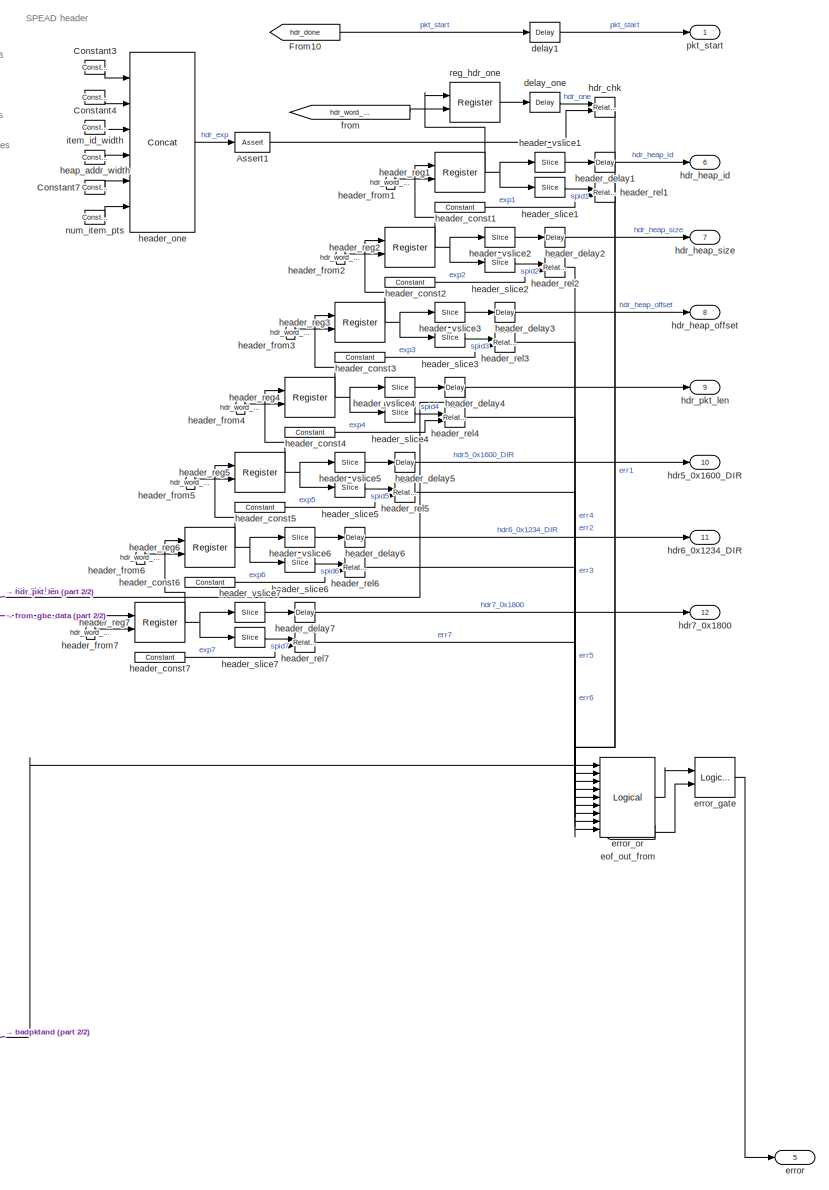
[diagram: spead_unpack - part 1/2, right side, full height]
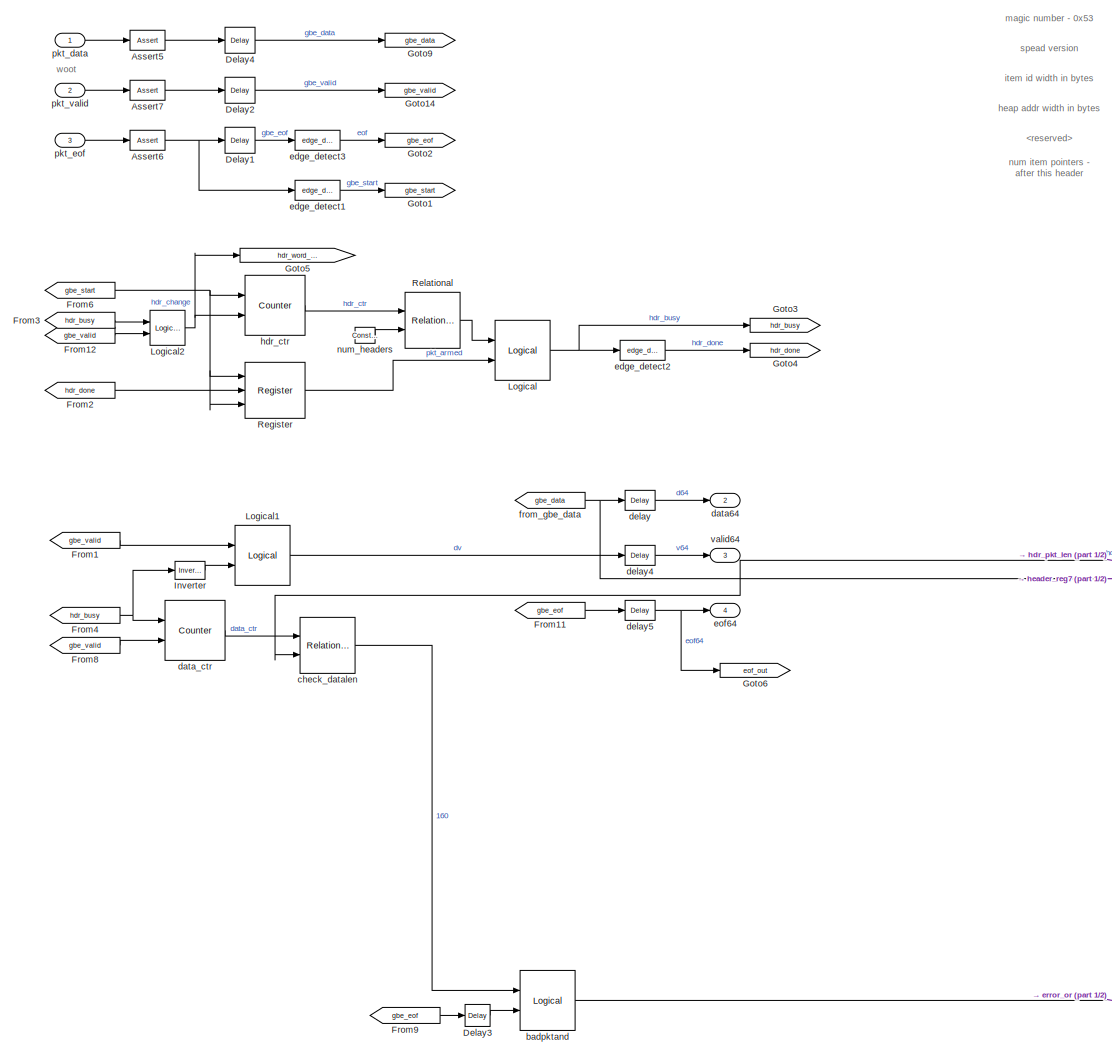
[diagram: spead_unpack - part 2/2, left side, full height]
BLOCK [SubSystem] spead_unpack
  Ports = [3, 12]
  RequestExecContextInheritance = off
  Tag = casper:spead_unpack
BLOCK [Reference] spead_unpack/Assert1  REF=xbsIndex_r4/Assert
  Ports = [1, 1]
  SourceBlock = xbsIndex_r4/Assert
  SourceType = Xilinx Assert Block
BLOCK [Reference] spead_unpack/Assert5  REF=xbsIndex_r4/Assert
  Ports = [1, 1]
  SourceBlock = xbsIndex_r4/Assert
  SourceType = Xilinx Assert Block
BLOCK [Reference] spead_unpack/Assert6  REF=xbsIndex_r4/Assert
  Ports = [1, 1]
  SourceBlock = xbsIndex_r4/Assert
  SourceType = Xilinx Assert Block
BLOCK [Reference] spead_unpack/Assert7  REF=xbsIndex_r4/Assert
  Ports = [1, 1]
  SourceBlock = xbsIndex_r4/Assert
  SourceType = Xilinx Assert Block
BLOCK [Reference] spead_unpack/Constant3  REF=xbsIndex_r4/Constant
  Ports = [0, 1]
  SourceBlock = xbsIndex_r4/Constant
  SourceType = Xilinx Constant Block Block
BLOCK [Reference] spead_unpack/Constant4  REF=xbsIndex_r4/Constant
  Ports = [0, 1]
  SourceBlock = xbsIndex_r4/Constant
  SourceType = Xilinx Constant Block Block
BLOCK [Reference] spead_unpack/Constant7  REF=xbsIndex_r4/Constant
  Ports = [0, 1]
  SourceBlock = xbsIndex_r4/Constant
  SourceType = Xilinx Constant Block Block
BLOCK [Reference] spead_unpack/Delay1  REF=xbsIndex_r4/Delay
  Ports = [1, 1]
  SourceBlock = xbsIndex_r4/Delay
  SourceType = Xilinx Delay Block
BLOCK [Reference] spead_unpack/Delay2  REF=xbsIndex_r4/Delay
  Ports = [1, 1]
  SourceBlock = xbsIndex_r4/Delay
  SourceType = Xilinx Delay Block
BLOCK [Reference] spead_unpack/Delay3  REF=xbsIndex_r4/Delay
  Ports = [1, 1]
  SourceBlock = xbsIndex_r4/Delay
  SourceType = Xilinx Delay Block
BLOCK [Reference] spead_unpack/Delay4  REF=xbsIndex_r4/Delay
  Ports = [1, 1]
  SourceBlock = xbsIndex_r4/Delay
  SourceType = Xilinx Delay Block
BLOCK [From] spead_unpack/From1
  CloseFcn = tagdialog Close
  GotoTag = gbe_valid
BLOCK [From] spead_unpack/From10
  CloseFcn = tagdialog Close
  GotoTag = hdr_done
BLOCK [From] spead_unpack/From11
  CloseFcn = tagdialog Close
  GotoTag = gbe_eof
BLOCK [From] spead_unpack/From12
  CloseFcn = tagdialog Close
  GotoTag = gbe_valid
BLOCK [From] spead_unpack/From2
  CloseFcn = tagdialog Close
  GotoTag = hdr_done
BLOCK [From] spead_unpack/From3
  CloseFcn = tagdialog Close
  GotoTag = hdr_busy
BLOCK [From] spead_unpack/From4
  CloseFcn = tagdialog Close
  GotoTag = hdr_busy
BLOCK [From] spead_unpack/From6
  CloseFcn = tagdialog Close
  GotoTag = gbe_start
BLOCK [From] spead_unpack/From8
  CloseFcn = tagdialog Close
  GotoTag = gbe_valid
BLOCK [From] spead_unpack/From9
  CloseFcn = tagdialog Close
  GotoTag = gbe_eof
BLOCK [Goto] spead_unpack/Goto1
  GotoTag = gbe_start
BLOCK [Goto] spead_unpack/Goto14
  GotoTag = gbe_valid
BLOCK [Goto] spead_unpack/Goto2
  GotoTag = gbe_eof
BLOCK [Goto] spead_unpack/Goto3
  GotoTag = hdr_busy
BLOCK [Goto] spead_unpack/Goto4
  GotoTag = hdr_done
BLOCK [Goto] spead_unpack/Goto5
  GotoTag = hdr_word_change
BLOCK [Goto] spead_unpack/Goto6
  GotoTag = eof_out
BLOCK [Goto] spead_unpack/Goto9
  GotoTag = gbe_data
BLOCK [Reference] spead_unpack/Inverter  REF=xbsIndex_r4/Inverter
  Ports = [1, 1]
  SourceBlock = xbsIndex_r4/Inverter
  SourceType = Xilinx Inverter Block
BLOCK [Reference] spead_unpack/Logical  REF=xbsIndex_r4/Logical
  Ports = [2, 1]
  SourceBlock = xbsIndex_r4/Logical
  SourceType = Xilinx Logical Block Block
BLOCK [Reference] spead_unpack/Logical1  REF=xbsIndex_r4/Logical
  Ports = [2, 1]
  SourceBlock = xbsIndex_r4/Logical
  SourceType = Xilinx Logical Block Block
BLOCK [Reference] spead_unpack/Logical2  REF=xbsIndex_r4/Logical
  Ports = [2, 1]
  SourceBlock = xbsIndex_r4/Logical
  SourceType = Xilinx Logical Block Block
BLOCK [Reference] spead_unpack/Register  REF=xbsIndex_r4/Register
  Ports = [3, 1]
  SourceBlock = xbsIndex_r4/Register
  SourceType = Xilinx Register Block
BLOCK [Reference] spead_unpack/Relational  REF=xbsIndex_r4/Relational
  Ports = [2, 1]
  SourceBlock = xbsIndex_r4/Relational
  SourceType = Xilinx Arithmetic Relational Operator Block
BLOCK [Reference] spead_unpack/badpktand  REF=xbsIndex_r4/Logical
  Ports = [2, 1]
  SourceBlock = xbsIndex_r4/Logical
  SourceType = Xilinx Logical Block Block
BLOCK [Reference] spead_unpack/check_datalen  REF=xbsIndex_r4/Relational
  Ports = [2, 1]
  SourceBlock = xbsIndex_r4/Relational
  SourceType = Xilinx Arithmetic Relational Operator Block
BLOCK [Outport] spead_unpack/data64
  IconDisplay = Port number
  Port = 2
BLOCK [Reference] spead_unpack/data_ctr  REF=xbsIndex_r4/Counter
  Ports = [2, 1]
  SourceBlock = xbsIndex_r4/Counter
  SourceType = Xilinx Counter Block
BLOCK [Reference] spead_unpack/delay  REF=xbsIndex_r4/Delay
  Ports = [1, 1]
  SourceBlock = xbsIndex_r4/Delay
  SourceType = Xilinx Delay Block
BLOCK [Reference] spead_unpack/delay1  REF=xbsIndex_r4/Delay
  Ports = [1, 1]
  SourceBlock = xbsIndex_r4/Delay
  SourceType = Xilinx Delay Block
BLOCK [Reference] spead_unpack/delay4  REF=xbsIndex_r4/Delay
  Ports = [1, 1]
  SourceBlock = xbsIndex_r4/Delay
  SourceType = Xilinx Delay Block
BLOCK [Reference] spead_unpack/delay5  REF=xbsIndex_r4/Delay
  Ports = [1, 1]
  SourceBlock = xbsIndex_r4/Delay
  SourceType = Xilinx Delay Block
BLOCK [Reference] spead_unpack/delay_one  REF=xbsIndex_r4/Delay
  Ports = [1, 1]
  SourceBlock = xbsIndex_r4/Delay
  SourceType = Xilinx Delay Block
BLOCK [Reference] spead_unpack/edge_detect1  REF=casper_library_misc/edge_detect  (lib defined in mdl_357510c33b49, mdl_57b5f564ae26, +4 more)
  AttributesFormatString = falling edges\nactive high
  Ports = [1, 1]
  SourceBlock = casper_library_misc/edge_detect
  SourceProductName = CASPER DSP Blockset
  SourceType = edge_detect
  UserDataPersistent = on
BLOCK [Reference] spead_unpack/edge_detect2  REF=casper_library_misc/edge_detect  (lib defined in mdl_357510c33b49, mdl_57b5f564ae26, +4 more)
  AttributesFormatString = falling edges\nactive high
  Ports = [1, 1]
  SourceBlock = casper_library_misc/edge_detect
  SourceProductName = CASPER DSP Blockset
  SourceType = edge_detect
  UserDataPersistent = on
BLOCK [Reference] spead_unpack/edge_detect3  REF=casper_library_misc/edge_detect  (lib defined in mdl_357510c33b49, mdl_57b5f564ae26, +4 more)
  AttributesFormatString = rising edges\nactive high
  Ports = [1, 1]
  SourceBlock = casper_library_misc/edge_detect
  SourceProductName = CASPER DSP Blockset
  SourceType = edge_detect
  UserDataPersistent = on
BLOCK [Outport] spead_unpack/eof64
  IconDisplay = Port number
  Port = 4
BLOCK [From] spead_unpack/eof_out_from
  GotoTag = eof_out
BLOCK [Outport] spead_unpack/error
  IconDisplay = Port number
  Port = 5
BLOCK [Reference] spead_unpack/error_gate  REF=xbsIndex_r4/Logical
  Ports = [2, 1]
  SourceBlock = xbsIndex_r4/Logical
  SourceType = Xilinx Logical Block Block
BLOCK [Reference] spead_unpack/error_or  REF=xbsIndex_r4/Logical
  Ports = [9, 1]
  SourceBlock = xbsIndex_r4/Logical
  SourceType = Xilinx Logical Block Block
BLOCK [From] spead_unpack/from
  GotoTag = hdr_word_change
BLOCK [From] spead_unpack/from_gbe_data
  CloseFcn = tagdialog Close
  GotoTag = gbe_data
BLOCK [Outport] spead_unpack/hdr5_0x1600_DIR
  IconDisplay = Port number
  Port = 10
BLOCK [Outport] spead_unpack/hdr6_0x1234_DIR
  IconDisplay = Port number
  Port = 11
BLOCK [Outport] spead_unpack/hdr7_0x1800
  IconDisplay = Port number
  Port = 12
BLOCK [Reference] spead_unpack/hdr_chk  REF=xbsIndex_r4/Relational
  Ports = [2, 1]
  SourceBlock = xbsIndex_r4/Relational
  SourceType = Xilinx Arithmetic Relational Operator Block
BLOCK [Reference] spead_unpack/hdr_ctr  REF=xbsIndex_r4/Counter
  Ports = [2, 1]
  SourceBlock = xbsIndex_r4/Counter
  SourceType = Xilinx Counter Block
BLOCK [Outport] spead_unpack/hdr_heap_id
  IconDisplay = Port number
  Port = 6
BLOCK [Outport] spead_unpack/hdr_heap_offset
  IconDisplay = Port number
  Port = 8
BLOCK [Outport] spead_unpack/hdr_heap_size
  IconDisplay = Port number
  Port = 7
BLOCK [Outport] spead_unpack/hdr_pkt_len
  IconDisplay = Port number
  Port = 9
BLOCK [Reference] spead_unpack/header_const1  REF=xbsIndex_r4/Constant
  Ports = [0, 1]
  SourceBlock = xbsIndex_r4/Constant
  SourceType = Xilinx Constant Block Block
BLOCK [Reference] spead_unpack/header_const2  REF=xbsIndex_r4/Constant
  Ports = [0, 1]
  SourceBlock = xbsIndex_r4/Constant
  SourceType = Xilinx Constant Block Block
BLOCK [Reference] spead_unpack/header_const3  REF=xbsIndex_r4/Constant
  Ports = [0, 1]
  SourceBlock = xbsIndex_r4/Constant
  SourceType = Xilinx Constant Block Block
BLOCK [Reference] spead_unpack/header_const4  REF=xbsIndex_r4/Constant
  Ports = [0, 1]
  SourceBlock = xbsIndex_r4/Constant
  SourceType = Xilinx Constant Block Block
BLOCK [Reference] spead_unpack/header_const5  REF=xbsIndex_r4/Constant
  Ports = [0, 1]
  SourceBlock = xbsIndex_r4/Constant
  SourceType = Xilinx Constant Block Block
BLOCK [Reference] spead_unpack/header_const6  REF=xbsIndex_r4/Constant
  Ports = [0, 1]
  SourceBlock = xbsIndex_r4/Constant
  SourceType = Xilinx Constant Block Block
BLOCK [Reference] spead_unpack/header_const7  REF=xbsIndex_r4/Constant
  Ports = [0, 1]
  SourceBlock = xbsIndex_r4/Constant
  SourceType = Xilinx Constant Block Block
BLOCK [Reference] spead_unpack/header_delay1  REF=xbsIndex_r4/Delay
  Ports = [1, 1]
  SourceBlock = xbsIndex_r4/Delay
  SourceType = Xilinx Delay Block
BLOCK [Reference] spead_unpack/header_delay2  REF=xbsIndex_r4/Delay
  Ports = [1, 1]
  SourceBlock = xbsIndex_r4/Delay
  SourceType = Xilinx Delay Block
BLOCK [Reference] spead_unpack/header_delay3  REF=xbsIndex_r4/Delay
  Ports = [1, 1]
  SourceBlock = xbsIndex_r4/Delay
  SourceType = Xilinx Delay Block
BLOCK [Reference] spead_unpack/header_delay4  REF=xbsIndex_r4/Delay
  Ports = [1, 1]
  SourceBlock = xbsIndex_r4/Delay
  SourceType = Xilinx Delay Block
BLOCK [Reference] spead_unpack/header_delay5  REF=xbsIndex_r4/Delay
  Ports = [1, 1]
  SourceBlock = xbsIndex_r4/Delay
  SourceType = Xilinx Delay Block
BLOCK [Reference] spead_unpack/header_delay6  REF=xbsIndex_r4/Delay
  Ports = [1, 1]
  SourceBlock = xbsIndex_r4/Delay
  SourceType = Xilinx Delay Block
BLOCK [Reference] spead_unpack/header_delay7  REF=xbsIndex_r4/Delay
  Ports = [1, 1]
  SourceBlock = xbsIndex_r4/Delay
  SourceType = Xilinx Delay Block
BLOCK [From] spead_unpack/header_from1
  GotoTag = hdr_word_change
BLOCK [From] spead_unpack/header_from2
  GotoTag = hdr_word_change
BLOCK [From] spead_unpack/header_from3
  GotoTag = hdr_word_change
BLOCK [From] spead_unpack/header_from4
  GotoTag = hdr_word_change
BLOCK [From] spead_unpack/header_from5
  GotoTag = hdr_word_change
BLOCK [From] spead_unpack/header_from6
  GotoTag = hdr_word_change
BLOCK [From] spead_unpack/header_from7
  GotoTag = hdr_word_change
BLOCK [Reference] spead_unpack/header_one  REF=xbsIndex_r4/Concat
  Ports = [6, 1]
  SourceBlock = xbsIndex_r4/Concat
  SourceType = Xilinx Bus Concatenator Block
BLOCK [Reference] spead_unpack/header_reg1  REF=xbsIndex_r4/Register
  Ports = [2, 1]
  SourceBlock = xbsIndex_r4/Register
  SourceType = Xilinx Register Block
BLOCK [Reference] spead_unpack/header_reg2  REF=xbsIndex_r4/Register
  Ports = [2, 1]
  SourceBlock = xbsIndex_r4/Register
  SourceType = Xilinx Register Block
BLOCK [Reference] spead_unpack/header_reg3  REF=xbsIndex_r4/Register
  Ports = [2, 1]
  SourceBlock = xbsIndex_r4/Register
  SourceType = Xilinx Register Block
BLOCK [Reference] spead_unpack/header_reg4  REF=xbsIndex_r4/Register
  Ports = [2, 1]
  SourceBlock = xbsIndex_r4/Register
  SourceType = Xilinx Register Block
BLOCK [Reference] spead_unpack/header_reg5  REF=xbsIndex_r4/Register
  Ports = [2, 1]
  SourceBlock = xbsIndex_r4/Register
  SourceType = Xilinx Register Block
BLOCK [Reference] spead_unpack/header_reg6  REF=xbsIndex_r4/Register
  Ports = [2, 1]
  SourceBlock = xbsIndex_r4/Register
  SourceType = Xilinx Register Block
BLOCK [Reference] spead_unpack/header_reg7  REF=xbsIndex_r4/Register
  Ports = [2, 1]
  SourceBlock = xbsIndex_r4/Register
  SourceType = Xilinx Register Block
BLOCK [Reference] spead_unpack/header_rel1  REF=xbsIndex_r4/Relational
  Ports = [2, 1]
  SourceBlock = xbsIndex_r4/Relational
  SourceType = Xilinx Arithmetic Relational Operator Block
BLOCK [Reference] spead_unpack/header_rel2  REF=xbsIndex_r4/Relational
  Ports = [2, 1]
  SourceBlock = xbsIndex_r4/Relational
  SourceType = Xilinx Arithmetic Relational Operator Block
BLOCK [Reference] spead_unpack/header_rel3  REF=xbsIndex_r4/Relational
  Ports = [2, 1]
  SourceBlock = xbsIndex_r4/Relational
  SourceType = Xilinx Arithmetic Relational Operator Block
BLOCK [Reference] spead_unpack/header_rel4  REF=xbsIndex_r4/Relational
  Ports = [2, 1]
  SourceBlock = xbsIndex_r4/Relational
  SourceType = Xilinx Arithmetic Relational Operator Block
BLOCK [Reference] spead_unpack/header_rel5  REF=xbsIndex_r4/Relational
  Ports = [2, 1]
  SourceBlock = xbsIndex_r4/Relational
  SourceType = Xilinx Arithmetic Relational Operator Block
BLOCK [Reference] spead_unpack/header_rel6  REF=xbsIndex_r4/Relational
  Ports = [2, 1]
  SourceBlock = xbsIndex_r4/Relational
  SourceType = Xilinx Arithmetic Relational Operator Block
BLOCK [Reference] spead_unpack/header_rel7  REF=xbsIndex_r4/Relational
  Ports = [2, 1]
  SourceBlock = xbsIndex_r4/Relational
  SourceType = Xilinx Arithmetic Relational Operator Block
BLOCK [Reference] spead_unpack/header_slice1  REF=xbsIndex_r4/Slice
  Ports = [1, 1]
  SourceBlock = xbsIndex_r4/Slice
  SourceType = Xilinx Bit Slice Extractor Block
BLOCK [Reference] spead_unpack/header_slice2  REF=xbsIndex_r4/Slice
  Ports = [1, 1]
  SourceBlock = xbsIndex_r4/Slice
  SourceType = Xilinx Bit Slice Extractor Block
BLOCK [Reference] spead_unpack/header_slice3  REF=xbsIndex_r4/Slice
  Ports = [1, 1]
  SourceBlock = xbsIndex_r4/Slice
  SourceType = Xilinx Bit Slice Extractor Block
BLOCK [Reference] spead_unpack/header_slice4  REF=xbsIndex_r4/Slice
  Ports = [1, 1]
  SourceBlock = xbsIndex_r4/Slice
  SourceType = Xilinx Bit Slice Extractor Block
BLOCK [Reference] spead_unpack/header_slice5  REF=xbsIndex_r4/Slice
  Ports = [1, 1]
  SourceBlock = xbsIndex_r4/Slice
  SourceType = Xilinx Bit Slice Extractor Block
BLOCK [Reference] spead_unpack/header_slice6  REF=xbsIndex_r4/Slice
  Ports = [1, 1]
  SourceBlock = xbsIndex_r4/Slice
  SourceType = Xilinx Bit Slice Extractor Block
BLOCK [Reference] spead_unpack/header_slice7  REF=xbsIndex_r4/Slice
  Ports = [1, 1]
  SourceBlock = xbsIndex_r4/Slice
  SourceType = Xilinx Bit Slice Extractor Block
BLOCK [Reference] spead_unpack/header_vslice1  REF=xbsIndex_r4/Slice
  Ports = [1, 1]
  SourceBlock = xbsIndex_r4/Slice
  SourceType = Xilinx Bit Slice Extractor Block
BLOCK [Reference] spead_unpack/header_vslice2  REF=xbsIndex_r4/Slice
  Ports = [1, 1]
  SourceBlock = xbsIndex_r4/Slice
  SourceType = Xilinx Bit Slice Extractor Block
BLOCK [Reference] spead_unpack/header_vslice3  REF=xbsIndex_r4/Slice
  Ports = [1, 1]
  SourceBlock = xbsIndex_r4/Slice
  SourceType = Xilinx Bit Slice Extractor Block
BLOCK [Reference] spead_unpack/header_vslice4  REF=xbsIndex_r4/Slice
  Ports = [1, 1]
  SourceBlock = xbsIndex_r4/Slice
  SourceType = Xilinx Bit Slice Extractor Block
BLOCK [Reference] spead_unpack/header_vslice5  REF=xbsIndex_r4/Slice
  Ports = [1, 1]
  SourceBlock = xbsIndex_r4/Slice
  SourceType = Xilinx Bit Slice Extractor Block
BLOCK [Reference] spead_unpack/header_vslice6  REF=xbsIndex_r4/Slice
  Ports = [1, 1]
  SourceBlock = xbsIndex_r4/Slice
  SourceType = Xilinx Bit Slice Extractor Block
BLOCK [Reference] spead_unpack/header_vslice7  REF=xbsIndex_r4/Slice
  Ports = [1, 1]
  SourceBlock = xbsIndex_r4/Slice
  SourceType = Xilinx Bit Slice Extractor Block
BLOCK [Reference] spead_unpack/heap_addr_width  REF=xbsIndex_r4/Constant
  Ports = [0, 1]
  SourceBlock = xbsIndex_r4/Constant
  SourceType = Xilinx Constant Block Block
BLOCK [Reference] spead_unpack/item_id_width  REF=xbsIndex_r4/Constant
  Ports = [0, 1]
  SourceBlock = xbsIndex_r4/Constant
  SourceType = Xilinx Constant Block Block
BLOCK [Reference] spead_unpack/num_headers  REF=xbsIndex_r4/Constant
  Ports = [0, 1]
  SourceBlock = xbsIndex_r4/Constant
  SourceType = Xilinx Constant Block Block
BLOCK [Reference] spead_unpack/num_item_pts  REF=xbsIndex_r4/Constant
  Ports = [0, 1]
  SourceBlock = xbsIndex_r4/Constant
  SourceType = Xilinx Constant Block Block
BLOCK [Inport] spead_unpack/pkt_data
  IconDisplay = Port number
BLOCK [Inport] spead_unpack/pkt_eof
  IconDisplay = Port number
  Port = 3
BLOCK [Outport] spead_unpack/pkt_start
  IconDisplay = Port number
BLOCK [Inport] spead_unpack/pkt_valid
  IconDisplay = Port number
  Port = 2
BLOCK [Reference] spead_unpack/reg_hdr_one  REF=xbsIndex_r4/Register
  Ports = [2, 1]
  SourceBlock = xbsIndex_r4/Register
  SourceType = Xilinx Register Block
BLOCK [Outport] spead_unpack/valid64
  IconDisplay = Port number
  Port = 3
ANNOTATION gbe_mux: Here we decide which input to send to the output. The decision is only made at the end of a packet. If data is available at the other input, we select that.
ANNOTATION gbe_mux: MUX TWO PACKET STREAMS Incomming data is buffered and only stored if it is commited (valid EOF). If a discard command is received, the data is flushed. "flush" provides an override for emptying buffers.
ANNOTATION pkt_buf: PACKET LENGTH SHOULD NOT BE LESS THAN 3 WORDS
ANNOTATION pkt_buf: THE ACK LINE MUST REMAIN HIGH EVEN WHEN VALID GOES LOW FOR FULL-SPEED READOUT. This is fine for the intended purpose: We read out a full packet at a time, ensuring that ack stays high until EOF is received. this is also important to ensure that the wrong IP address is not used (there is a one-clock delay to fetch the next IP)
ANNOTATION pkt_buf: MUX TWO PACKET STREAMS Incomming data is buffered and only stored if it is commited (valid EOF). If a discard command is received, the data is flushed.
ANNOTATION pkt_buf/data_FWFT: Dualport ram incurrs delay of one clock cycle
ANNOTATION pkt_buf/data_FWFT: If the ack line goes low while there's still valid data on the output, then we need to set the rd addr back one place and blank the next output as invalid. But not if we only got one ACK.
ANNOTATION pkt_buf/data_FWFT: This block does not quite work as you might expect: The "valid" signal is correctly aligned with the data, but because this block introduces a one-clock-cycle delay, the second ack pulse produces null data. This is all ok so long as you keep the ACK line high for an entire packet length.
ANNOTATION pkt_buf/data_FWFT: set during the second ack
ANNOTATION pkt_buf/data_FWFT: set until the first ack
ANNOTATION spead_pack: SPEAD header
ANNOTATION spead_pack: eof ON the last valid data.
ANNOTATION spead_pack: heap addr width in bytes
ANNOTATION spead_pack: item id width in bytes
ANNOTATION spead_pack: magic number - 0x53
ANNOTATION spead_pack: num item pointers - after this header
ANNOTATION spead_pack: spead version
ANNOTATION spead_unpack: SPEAD header
ANNOTATION spead_unpack: heap addr width in bytes
ANNOTATION spead_unpack: item id width in bytes
ANNOTATION spead_unpack: magic number - 0x53
ANNOTATION spead_unpack: num item pointers - after this header
ANNOTATION spead_unpack: spead version
ANNOTATION spead_unpack: woot
LINE frame_len_checker/Constant2:1 -> frame_len_checker/Relational1:2
NET frame_len_checker/Logical1:1 -> frame_len_checker/Logical5:1, frame_len_checker/payload_cnt:1
LINE frame_len_checker/Logical5:1 -> frame_len_checker/frame_len_error:1
LINE frame_len_checker/Logical6:1 -> frame_len_checker/Logical1:1
LINE frame_len_checker/Relational1:1 -> frame_len_checker/Logical5:2
LINE frame_len_checker/bad_frame:1 -> frame_len_checker/Logical6:1
LINE frame_len_checker/eof:1 -> frame_len_checker/Logical6:2
LINE frame_len_checker/payload_cnt:1 -> frame_len_checker/Relational1:1
NET frame_len_checker/valid:1 -> frame_len_checker/Logical1:2, frame_len_checker/payload_cnt:2
LINE gbe_mux/0_eof_AND_1_not_empty:1 -> gbe_mux/Convert3:1
LINE gbe_mux/1_eof_AND_0_valid:1 -> gbe_mux/Convert4:1
LINE gbe_mux/Concat1:1 -> gbe_mux/Goto16:1
LINE gbe_mux/Concat2:1 -> gbe_mux/Goto13:1
NET gbe_mux/Convert3:1 -> gbe_mux/Register:1, gbe_mux/Register:3
LINE gbe_mux/Convert4:1 -> gbe_mux/Register:2
LINE gbe_mux/From15:1 -> gbe_mux/Gateway Out16:1
LINE gbe_mux/From19:1 -> gbe_mux/0_eof_AND_1_not_empty:2
LINE gbe_mux/From1:1 -> gbe_mux/Inverter2:1
LINE gbe_mux/From20:1 -> gbe_mux/1_eof_AND_0_valid:1
LINE gbe_mux/From21:1 -> gbe_mux/0_eof_AND_1_not_empty:1
LINE gbe_mux/From23:1 -> gbe_mux/1_eof_AND_0_valid:2
LINE gbe_mux/From24:1 -> gbe_mux/data_mux:2
NET gbe_mux/From25:1 -> gbe_mux/Gateway Out11:1, gbe_mux/data_mux:1
LINE gbe_mux/From2:1 -> gbe_mux/ack_1_en:2
LINE gbe_mux/From32:1 -> gbe_mux/data_mux:3
LINE gbe_mux/From3:1 -> gbe_mux/Gateway Out5:1
LINE gbe_mux/From43:1 -> gbe_mux/status_input_sel:1
LINE gbe_mux/Gateway Out10:1 -> gbe_mux/mux_out_raw:4
LINE gbe_mux/Gateway Out11:1 -> gbe_mux/mux_out_raw:5
LINE gbe_mux/Gateway Out12:1 -> gbe_mux/mux_out_raw:1
LINE gbe_mux/Gateway Out13:1 -> gbe_mux/in1:3
LINE gbe_mux/Gateway Out14:1 -> gbe_mux/in1:1
LINE gbe_mux/Gateway Out15:1 -> gbe_mux/in1:4
LINE gbe_mux/Gateway Out16:1 -> gbe_mux/in1:5
LINE gbe_mux/Gateway Out17:1 -> gbe_mux/in1:6
LINE gbe_mux/Gateway Out1:1 -> gbe_mux/in0:2
LINE gbe_mux/Gateway Out2:1 -> gbe_mux/in0:3
LINE gbe_mux/Gateway Out3:1 -> gbe_mux/in0:1
LINE gbe_mux/Gateway Out4:1 -> gbe_mux/in0:4
LINE gbe_mux/Gateway Out5:1 -> gbe_mux/in0:5
LINE gbe_mux/Gateway Out6:1 -> gbe_mux/in0:6
LINE gbe_mux/Gateway Out7:1 -> gbe_mux/in1:2
LINE gbe_mux/Gateway Out8:1 -> gbe_mux/mux_out_raw:2
LINE gbe_mux/Gateway Out9:1 -> gbe_mux/mux_out_raw:3
LINE gbe_mux/Inverter2:1 -> gbe_mux/ack_0_en:1
LINE gbe_mux/Register1:1 -> gbe_mux/valid_eof_ins1:1
LINE gbe_mux/Register2:1 -> gbe_mux/valid_eof_ins0:1
LINE gbe_mux/Register:1 -> gbe_mux/Goto12:1
NET gbe_mux/ack_0_en:1 -> gbe_mux/Gateway Out6:1, gbe_mux/ack_0:1
NET gbe_mux/ack_1_en:1 -> gbe_mux/Gateway Out17:1, gbe_mux/ack_1:1
NET gbe_mux/d_in_0:1 -> gbe_mux/Concat2:5, gbe_mux/Gateway Out3:1
NET gbe_mux/d_in_1:1 -> gbe_mux/Concat1:5, gbe_mux/Gateway Out14:1
NET gbe_mux/data_mux:1 -> gbe_mux/mux_data:1, gbe_mux/mux_discard:1, gbe_mux/mux_eof:1, gbe_mux/mux_ip_addr:1, gbe_mux/mux_valid:1
NET gbe_mux/dest_ip_0:1 -> gbe_mux/Concat2:4, gbe_mux/Gateway Out2:1
NET gbe_mux/dest_ip_1:1 -> gbe_mux/Concat1:4, gbe_mux/Gateway Out13:1
NET gbe_mux/discard_0:1 -> gbe_mux/Concat2:3, gbe_mux/valid_eof_0_de:2
NET gbe_mux/discard_1:1 -> gbe_mux/Concat1:3, gbe_mux/valid_eof_2:2
NET gbe_mux/eof_0:1 -> gbe_mux/Concat2:2, gbe_mux/Gateway Out4:1, gbe_mux/valid_eof_0_de:1
NET gbe_mux/eof_1:1 -> gbe_mux/Concat1:2, gbe_mux/Gateway Out15:1, gbe_mux/valid_eof_2:1
NET gbe_mux/eof_valid_mux:1 -> gbe_mux/Gateway Out10:1, gbe_mux/eof:1
NET gbe_mux/mux_data:1 -> gbe_mux/Gateway Out12:1, gbe_mux/data:1
LINE gbe_mux/mux_discard:1 -> gbe_mux/discard:1
LINE gbe_mux/mux_eof:1 -> gbe_mux/eof_valid_mux:2
NET gbe_mux/mux_ip_addr:1 -> gbe_mux/Gateway Out9:1, gbe_mux/ip_addr:1
NET gbe_mux/mux_valid:1 -> gbe_mux/Gateway Out8:1, gbe_mux/eof_valid_mux:1, gbe_mux/valid:1
NET gbe_mux/rd_ack:1 -> gbe_mux/ack_0_en:2, gbe_mux/ack_1_en:1
NET gbe_mux/valid_0:1 -> gbe_mux/Concat2:1, gbe_mux/Gateway Out1:1, gbe_mux/Goto2:1, gbe_mux/Register2:2, gbe_mux/valid_eof_0:1
NET gbe_mux/valid_1:1 -> gbe_mux/Concat1:1, gbe_mux/Gateway Out7:1, gbe_mux/Goto1:1, gbe_mux/Register1:2, gbe_mux/valid_eof_1:1
NET gbe_mux/valid_eof_0:1 -> gbe_mux/Register2:1, gbe_mux/valid_eof_ins0:2
LINE gbe_mux/valid_eof_0_de:1 -> gbe_mux/valid_eof_0:2
NET gbe_mux/valid_eof_1:1 -> gbe_mux/Register1:1, gbe_mux/valid_eof_ins1:2
LINE gbe_mux/valid_eof_2:1 -> gbe_mux/valid_eof_1:2
LINE gbe_mux/valid_eof_ins0:1 -> gbe_mux/Goto3:1
LINE gbe_mux/valid_eof_ins1:1 -> gbe_mux/Goto11:1
LINE pkt_buf/Concat3:1 -> pkt_buf/status:1
LINE pkt_buf/Concat:1 -> pkt_buf/data_FWFT:1
NET pkt_buf/Concat_status:1 -> pkt_buf/Concat3:2, pkt_buf/status_out:1
LINE pkt_buf/Constant13:1 -> pkt_buf/discard:1
LINE pkt_buf/Constant7:1 -> pkt_buf/Concat3:1
LINE pkt_buf/Constant9:1 -> pkt_buf/ip_fifo:4
LINE pkt_buf/Convert1:1 -> pkt_buf/Concat_status:1
LINE pkt_buf/Convert2:1 -> pkt_buf/valid_eof_0:2
LINE pkt_buf/Convert3:1 -> pkt_buf/data_FWFT:4
LINE pkt_buf/Convert4:1 -> pkt_buf/Goto14:1
LINE pkt_buf/Convert5:1 -> pkt_buf/Concat_status:2
LINE pkt_buf/Convert8:1 -> pkt_buf/Concat_status:3
LINE pkt_buf/Convert9:1 -> pkt_buf/Concat_status:4
NET pkt_buf/Convert:1 -> pkt_buf/Goto8:1, pkt_buf/data_FWFT:2, pkt_buf/valid_eof_0:1
LINE pkt_buf/From10:1 -> pkt_buf/Gateway Out9:1
LINE pkt_buf/From11:1 -> pkt_buf/Gateway Out4:1
LINE pkt_buf/From12:1 -> pkt_buf/Gateway Out5:1
LINE pkt_buf/From13:1 -> pkt_buf/Gateway Out10:1
LINE pkt_buf/From14:1 -> pkt_buf/Gateway Out3:1
LINE pkt_buf/From15:1 -> pkt_buf/Gateway Out13:1
LINE pkt_buf/From16:1 -> pkt_buf/Gateway Out16:1
LINE pkt_buf/From17:1 -> pkt_buf/Gateway Out17:1
LINE pkt_buf/From18:1 -> pkt_buf/Gateway Out18:1
LINE pkt_buf/From19:1 -> pkt_buf/Gateway Out19:1
LINE pkt_buf/From1:1 -> pkt_buf/Inverter4:1
LINE pkt_buf/From20:1 -> pkt_buf/Gateway Out15:1
LINE pkt_buf/From21:1 -> pkt_buf/Gateway Out11:1
LINE pkt_buf/From22:1 -> pkt_buf/ip_fifo:5
LINE pkt_buf/From23:1 -> pkt_buf/Gateway Out12:1
LINE pkt_buf/From26:1 -> pkt_buf/data_FWFT:5
LINE pkt_buf/From2:1 -> pkt_buf/Gateway Out2:1
NET pkt_buf/From39:1 -> pkt_buf/Convert5:1, pkt_buf/Gateway Out8:1
LINE pkt_buf/From3:1 -> pkt_buf/commit:1
NET pkt_buf/From40:1 -> pkt_buf/Convert8:1, pkt_buf/Gateway Out6:1
NET pkt_buf/From41:1 -> pkt_buf/Convert1:1, pkt_buf/Gateway Out7:1
NET pkt_buf/From42:1 -> pkt_buf/Convert9:1, pkt_buf/Gateway Out14:1
LINE pkt_buf/From4:1 -> pkt_buf/Gateway Out24:1
LINE pkt_buf/From5:1 -> pkt_buf/Gateway Out1:1
LINE pkt_buf/From6:1 -> pkt_buf/fifo_full:2
LINE pkt_buf/From7:1 -> pkt_buf/fifo_empty:1
LINE pkt_buf/From8:1 -> pkt_buf/fifo_full:1
LINE pkt_buf/From9:1 -> pkt_buf/fifo_empty:2
LINE pkt_buf/Gateway Out10:1 -> pkt_buf/data_debug:8
LINE pkt_buf/Gateway Out11:1 -> pkt_buf/data_debug:9
LINE pkt_buf/Gateway Out12:1 -> pkt_buf/data_debug:10
LINE pkt_buf/Gateway Out13:1 -> pkt_buf/ip_debug:1
LINE pkt_buf/Gateway Out14:1 -> pkt_buf/status1:4
LINE pkt_buf/Gateway Out15:1 -> pkt_buf/ip_debug:2
LINE pkt_buf/Gateway Out16:1 -> pkt_buf/ip_debug:3
LINE pkt_buf/Gateway Out17:1 -> pkt_buf/ip_debug:4
LINE pkt_buf/Gateway Out18:1 -> pkt_buf/ip_debug:5
LINE pkt_buf/Gateway Out19:1 -> pkt_buf/ip_debug:6
LINE pkt_buf/Gateway Out1:1 -> pkt_buf/data_debug:2
LINE pkt_buf/Gateway Out24:1 -> pkt_buf/data_debug:1
LINE pkt_buf/Gateway Out2:1 -> pkt_buf/data_debug:3
LINE pkt_buf/Gateway Out3:1 -> pkt_buf/data_debug:4
LINE pkt_buf/Gateway Out4:1 -> pkt_buf/data_debug:5
LINE pkt_buf/Gateway Out5:1 -> pkt_buf/data_debug:6
LINE pkt_buf/Gateway Out6:1 -> pkt_buf/status1:3
LINE pkt_buf/Gateway Out7:1 -> pkt_buf/status1:1
LINE pkt_buf/Gateway Out8:1 -> pkt_buf/status1:2
LINE pkt_buf/Gateway Out9:1 -> pkt_buf/data_debug:7
LINE pkt_buf/Inverter4:1 -> pkt_buf/commit:2
NET pkt_buf/Reinterpret:1 -> pkt_buf/Concat:2, pkt_buf/Goto5:1
LINE pkt_buf/ack_out:1 -> pkt_buf/Convert4:1
NET pkt_buf/buf_data3:1 -> pkt_buf/Goto9:1, pkt_buf/data:1
LINE pkt_buf/buf_eof1:1 -> pkt_buf/Goto1:1
NET pkt_buf/buf_eof3:1 -> pkt_buf/Goto12:1, pkt_buf/eof:1
NET pkt_buf/commit:1 -> pkt_buf/Goto16:1, pkt_buf/ip_fifo:2, pkt_buf/ip_fifo:3
LINE pkt_buf/d_in:1 -> pkt_buf/Reinterpret:1
LINE pkt_buf/data_FWFT/AddSub:1 -> pkt_buf/data_FWFT/Relational:1
LINE pkt_buf/data_FWFT/Constant1:1 -> pkt_buf/data_FWFT/Relational:2
LINE pkt_buf/data_FWFT/Constant5:1 -> pkt_buf/data_FWFT/Dual Port RAM:6
NET pkt_buf/data_FWFT/Delay15:1 -> pkt_buf/data_FWFT/Goto12:1, pkt_buf/data_FWFT/empty:1
LINE pkt_buf/data_FWFT/Delay:1 -> pkt_buf/data_FWFT/Inverter8:1
NET pkt_buf/data_FWFT/Dual Port RAM:2 -> pkt_buf/data_FWFT/Goto7:1, pkt_buf/data_FWFT/dout:1
LINE pkt_buf/data_FWFT/From10:1 -> pkt_buf/data_FWFT/Register1:2
NET pkt_buf/data_FWFT/From11:1 -> pkt_buf/data_FWFT/Register1:1, pkt_buf/data_FWFT/Register1:3, pkt_buf/data_FWFT/Register2:2
LINE pkt_buf/data_FWFT/From12:1 -> pkt_buf/data_FWFT/Inverter1:1
LINE pkt_buf/data_FWFT/From13:1 -> pkt_buf/data_FWFT/Register2:3
LINE pkt_buf/data_FWFT/From14:1 -> pkt_buf/data_FWFT/Gateway Out9:1
LINE pkt_buf/data_FWFT/From15:1 -> pkt_buf/data_FWFT/Gateway Out10:1
LINE pkt_buf/data_FWFT/From16:1 -> pkt_buf/data_FWFT/Gateway Out12:1
LINE pkt_buf/data_FWFT/From17:1 -> pkt_buf/data_FWFT/wr_cnt:1
LINE pkt_buf/data_FWFT/From18:1 -> pkt_buf/data_FWFT/Gateway Out6:1
LINE pkt_buf/data_FWFT/From19:1 -> pkt_buf/data_FWFT/Gateway Out5:1
LINE pkt_buf/data_FWFT/From1:1 -> pkt_buf/data_FWFT/Gateway Out22:1
LINE pkt_buf/data_FWFT/From20:1 -> pkt_buf/data_FWFT/Gateway Out39:1
LINE pkt_buf/data_FWFT/From22:1 -> pkt_buf/data_FWFT/Gateway Out1:1
NET pkt_buf/data_FWFT/From23:1 -> pkt_buf/data_FWFT/Gateway Out25:1, pkt_buf/data_FWFT/Gateway Out2:1
LINE pkt_buf/data_FWFT/From24:1 -> pkt_buf/data_FWFT/Gateway Out24:1
LINE pkt_buf/data_FWFT/From25:1 -> pkt_buf/data_FWFT/set_cnt:1
LINE pkt_buf/data_FWFT/From26:1 -> pkt_buf/data_FWFT/Dual Port RAM:3
LINE pkt_buf/data_FWFT/From27:1 -> pkt_buf/data_FWFT/set_cnt:3
LINE pkt_buf/data_FWFT/From28:1 -> pkt_buf/data_FWFT/Logical3:1
NET pkt_buf/data_FWFT/From29:1 -> pkt_buf/data_FWFT/Dual Port RAM:2, pkt_buf/data_FWFT/Dual Port RAM:5
LINE pkt_buf/data_FWFT/From2:1 -> pkt_buf/data_FWFT/Logical4:1
LINE pkt_buf/data_FWFT/From30:1 -> pkt_buf/data_FWFT/Slice1:1
LINE pkt_buf/data_FWFT/From31:1 -> pkt_buf/data_FWFT/Relational2:2
LINE pkt_buf/data_FWFT/From32:1 -> pkt_buf/data_FWFT/Logical9:1
LINE pkt_buf/data_FWFT/From33:1 -> pkt_buf/data_FWFT/Inverter9:1
LINE pkt_buf/data_FWFT/From34:1 -> pkt_buf/data_FWFT/Logical8:1
LINE pkt_buf/data_FWFT/From35:1 -> pkt_buf/data_FWFT/Inverter5:1
LINE pkt_buf/data_FWFT/From36:1 -> pkt_buf/data_FWFT/Inverter7:1
LINE pkt_buf/data_FWFT/From3:1 -> pkt_buf/data_FWFT/ack_cnt:1
LINE pkt_buf/data_FWFT/From4:1 -> pkt_buf/data_FWFT/Gateway Out23:1
LINE pkt_buf/data_FWFT/From5:1 -> pkt_buf/data_FWFT/Inverter3:1
LINE pkt_buf/data_FWFT/From6:1 -> pkt_buf/data_FWFT/Gateway Out7:1
LINE pkt_buf/data_FWFT/From7:1 -> pkt_buf/data_FWFT/Gateway Out8:1
LINE pkt_buf/data_FWFT/From8:1 -> pkt_buf/data_FWFT/Slice4:1
LINE pkt_buf/data_FWFT/From9:1 -> pkt_buf/data_FWFT/Slice5:1
LINE pkt_buf/data_FWFT/Gateway Out10:1 -> pkt_buf/data_FWFT/buf_debug2:1
LINE pkt_buf/data_FWFT/Gateway Out11:1 -> pkt_buf/data_FWFT/buf_debug2:4
LINE pkt_buf/data_FWFT/Gateway Out12:1 -> pkt_buf/data_FWFT/buf_debug2:3
LINE pkt_buf/data_FWFT/Gateway Out1:1 -> pkt_buf/data_FWFT/buf_debug:5
LINE pkt_buf/data_FWFT/Gateway Out22:1 -> pkt_buf/data_FWFT/buf_debug:6
LINE pkt_buf/data_FWFT/Gateway Out23:1 -> pkt_buf/data_FWFT/buf_debug:7
LINE pkt_buf/data_FWFT/Gateway Out24:1 -> pkt_buf/data_FWFT/buf_debug:1
LINE pkt_buf/data_FWFT/Gateway Out25:1 -> pkt_buf/data_FWFT/buf_debug:4
LINE pkt_buf/data_FWFT/Gateway Out2:1 -> pkt_buf/data_FWFT/buf_debug:2
LINE pkt_buf/data_FWFT/Gateway Out39:1 -> pkt_buf/data_FWFT/buf_debug:3
LINE pkt_buf/data_FWFT/Gateway Out3:1 -> pkt_buf/data_FWFT/buf_debug:8
LINE pkt_buf/data_FWFT/Gateway Out4:1 -> pkt_buf/data_FWFT/buf_debug:9
LINE pkt_buf/data_FWFT/Gateway Out5:1 -> pkt_buf/data_FWFT/rd_wr_debug:2
LINE pkt_buf/data_FWFT/Gateway Out6:1 -> pkt_buf/data_FWFT/rd_wr_debug:1
LINE pkt_buf/data_FWFT/Gateway Out7:1 -> pkt_buf/data_FWFT/rd_wr_debug:3
LINE pkt_buf/data_FWFT/Gateway Out8:1 -> pkt_buf/data_FWFT/buf_debug:10
LINE pkt_buf/data_FWFT/Gateway Out9:1 -> pkt_buf/data_FWFT/buf_debug2:2
LINE pkt_buf/data_FWFT/Inverter10:1 -> pkt_buf/data_FWFT/Logical10:2
LINE pkt_buf/data_FWFT/Inverter1:1 -> pkt_buf/data_FWFT/Logical4:2
NET pkt_buf/data_FWFT/Inverter2:1 -> pkt_buf/data_FWFT/Logical1:2, pkt_buf/data_FWFT/Logical3:2
LINE pkt_buf/data_FWFT/Inverter3:1 -> pkt_buf/data_FWFT/Logical2:2
LINE pkt_buf/data_FWFT/Inverter4:1 -> pkt_buf/data_FWFT/Logical2:3
LINE pkt_buf/data_FWFT/Inverter5:1 -> pkt_buf/data_FWFT/Logical9:2
LINE pkt_buf/data_FWFT/Inverter6:1 -> pkt_buf/data_FWFT/rd_cnt:1
LINE pkt_buf/data_FWFT/Inverter7:1 -> pkt_buf/data_FWFT/Logical8:2
LINE pkt_buf/data_FWFT/Inverter8:1 -> pkt_buf/data_FWFT/Logical2:1
LINE pkt_buf/data_FWFT/Inverter9:1 -> pkt_buf/data_FWFT/Logical8:3
LINE pkt_buf/data_FWFT/Logical10:1 -> pkt_buf/data_FWFT/Goto13:1
NET pkt_buf/data_FWFT/Logical1:1 -> pkt_buf/data_FWFT/Delay15:1, pkt_buf/data_FWFT/Goto1:1
NET pkt_buf/data_FWFT/Logical2:1 -> pkt_buf/data_FWFT/Goto11:1, pkt_buf/data_FWFT/valid:1
NET pkt_buf/data_FWFT/Logical3:1 -> pkt_buf/data_FWFT/Goto3:1, pkt_buf/data_FWFT/wr_ack:1
LINE pkt_buf/data_FWFT/Logical4:1 -> pkt_buf/data_FWFT/Logical7:2
LINE pkt_buf/data_FWFT/Logical5:1 -> pkt_buf/data_FWFT/Logical6:1
NET pkt_buf/data_FWFT/Logical6:1 -> pkt_buf/data_FWFT/Inverter2:1, pkt_buf/data_FWFT/full:1
LINE pkt_buf/data_FWFT/Logical7:1 -> pkt_buf/data_FWFT/rd_cnt:2
NET pkt_buf/data_FWFT/Logical8:1 -> pkt_buf/data_FWFT/Inverter6:1, pkt_buf/data_FWFT/Logical7:1
LINE pkt_buf/data_FWFT/Logical9:1 -> pkt_buf/data_FWFT/Delay:1
NET pkt_buf/data_FWFT/Register1:1 -> pkt_buf/data_FWFT/Inverter10:1, pkt_buf/data_FWFT/Register2:1
NET pkt_buf/data_FWFT/Register2:1 -> pkt_buf/data_FWFT/Gateway Out11:1, pkt_buf/data_FWFT/Inverter4:1, pkt_buf/data_FWFT/Logical10:1
LINE pkt_buf/data_FWFT/Relational1:1 -> pkt_buf/data_FWFT/Logical6:2
LINE pkt_buf/data_FWFT/Relational2:1 -> pkt_buf/data_FWFT/Logical1:1
LINE pkt_buf/data_FWFT/Relational:1 -> pkt_buf/data_FWFT/almost_full:1
LINE pkt_buf/data_FWFT/Slice1:1 -> pkt_buf/data_FWFT/Logical5:2
NET pkt_buf/data_FWFT/Slice2:1 -> pkt_buf/data_FWFT/Dual Port RAM:1, pkt_buf/data_FWFT/Relational1:1
LINE pkt_buf/data_FWFT/Slice3:1 -> pkt_buf/data_FWFT/Logical5:1
LINE pkt_buf/data_FWFT/Slice4:1 -> pkt_buf/data_FWFT/AddSub:2
LINE pkt_buf/data_FWFT/Slice5:1 -> pkt_buf/data_FWFT/AddSub:1
NET pkt_buf/data_FWFT/Slice:1 -> pkt_buf/data_FWFT/Dual Port RAM:4, pkt_buf/data_FWFT/Relational1:2
NET pkt_buf/data_FWFT/ack:1 -> pkt_buf/data_FWFT/Goto2:1, pkt_buf/data_FWFT/negedge2:1
LINE pkt_buf/data_FWFT/ack_cnt:1 -> pkt_buf/data_FWFT/Gateway Out3:1
LINE pkt_buf/data_FWFT/commit:1 -> pkt_buf/data_FWFT/Goto6:1
LINE pkt_buf/data_FWFT/din:1 -> pkt_buf/data_FWFT/Goto9:1
LINE pkt_buf/data_FWFT/discard:1 -> pkt_buf/data_FWFT/set_cnt:2
LINE pkt_buf/data_FWFT/negedge2:1 -> pkt_buf/data_FWFT/Goto10:1
NET pkt_buf/data_FWFT/rd_cnt:1 -> pkt_buf/data_FWFT/Goto5:1, pkt_buf/data_FWFT/Slice:1
NET pkt_buf/data_FWFT/set_cnt/Counter4:1 -> pkt_buf/data_FWFT/set_cnt/Register2:1, pkt_buf/data_FWFT/set_cnt/cnt:1
LINE pkt_buf/data_FWFT/set_cnt/Inverter1:1 -> pkt_buf/data_FWFT/set_cnt/Logical1:3
LINE pkt_buf/data_FWFT/set_cnt/Inverter:1 -> pkt_buf/data_FWFT/set_cnt/Logical4:3
LINE pkt_buf/data_FWFT/set_cnt/Logical1:1 -> pkt_buf/data_FWFT/set_cnt/Counter4:1
NET pkt_buf/data_FWFT/set_cnt/Logical4:1 -> pkt_buf/data_FWFT/set_cnt/Inverter1:1, pkt_buf/data_FWFT/set_cnt/Register2:2
NET pkt_buf/data_FWFT/set_cnt/Register2:1 -> pkt_buf/data_FWFT/set_cnt/Counter4:2, pkt_buf/data_FWFT/set_cnt/set_cnt:1
NET pkt_buf/data_FWFT/set_cnt/en:1 -> pkt_buf/data_FWFT/set_cnt/Counter4:3, pkt_buf/data_FWFT/set_cnt/Logical1:2, pkt_buf/data_FWFT/set_cnt/Logical4:2
LINE pkt_buf/data_FWFT/set_cnt/set:1 -> pkt_buf/data_FWFT/set_cnt/Logical4:1
NET pkt_buf/data_FWFT/set_cnt/undo:1 -> pkt_buf/data_FWFT/set_cnt/Inverter:1, pkt_buf/data_FWFT/set_cnt/Logical1:1
LINE pkt_buf/data_FWFT/set_cnt:1 -> pkt_buf/data_FWFT/Relational2:1
NET pkt_buf/data_FWFT/set_cnt:2 -> pkt_buf/data_FWFT/Goto4:1, pkt_buf/data_FWFT/Slice2:1, pkt_buf/data_FWFT/Slice3:1
LINE pkt_buf/data_FWFT/we:1 -> pkt_buf/data_FWFT/Goto8:1
LINE pkt_buf/data_FWFT/wr_cnt:1 -> pkt_buf/data_FWFT/Gateway Out4:1
NET pkt_buf/data_FWFT:1 -> pkt_buf/buf_data3:1, pkt_buf/buf_eof1:1, pkt_buf/buf_eof3:1
NET pkt_buf/data_FWFT:2 -> pkt_buf/Goto11:1, pkt_buf/valid:1
LINE pkt_buf/data_FWFT:3 -> pkt_buf/ack_in:1
LINE pkt_buf/data_FWFT:4 -> pkt_buf/Goto6:1
LINE pkt_buf/data_FWFT:5 -> pkt_buf/Goto2:1
NET pkt_buf/dest_ip_0:1 -> pkt_buf/Goto15:1, pkt_buf/ip_fifo:1
LINE pkt_buf/discard_in:1 -> pkt_buf/Convert3:1
LINE pkt_buf/eof_in:1 -> pkt_buf/Convert2:1
LINE pkt_buf/fifo_empty:1 -> pkt_buf/buffer_empty:1
NET pkt_buf/fifo_full:1 -> pkt_buf/buffer_overflow:1, pkt_buf/overflows:1
LINE pkt_buf/ip_fifo/Constant5:1 -> pkt_buf/ip_fifo/Dual Port RAM:6
LINE pkt_buf/ip_fifo/Dual Port RAM:2 -> pkt_buf/ip_fifo/dout:1
LINE pkt_buf/ip_fifo/Inverter1:1 -> pkt_buf/ip_fifo/Logical4:2
NET pkt_buf/ip_fifo/Inverter2:1 -> pkt_buf/ip_fifo/Logical1:2, pkt_buf/ip_fifo/Logical3:1
NET pkt_buf/ip_fifo/Logical1:1 -> pkt_buf/ip_fifo/Inverter1:1, pkt_buf/ip_fifo/empty:1
NET pkt_buf/ip_fifo/Logical3:1 -> pkt_buf/ip_fifo/Dual Port RAM:3, pkt_buf/ip_fifo/set_cnt:3, pkt_buf/ip_fifo/wr_ack:1
LINE pkt_buf/ip_fifo/Logical4:1 -> pkt_buf/ip_fifo/rd_cnt:1
LINE pkt_buf/ip_fifo/Logical5:1 -> pkt_buf/ip_fifo/Logical6:1
NET pkt_buf/ip_fifo/Logical6:1 -> pkt_buf/ip_fifo/Inverter2:1, pkt_buf/ip_fifo/full:1
LINE pkt_buf/ip_fifo/Relational1:1 -> pkt_buf/ip_fifo/Logical6:2
LINE pkt_buf/ip_fifo/Relational2:1 -> pkt_buf/ip_fifo/Logical1:1
LINE pkt_buf/ip_fifo/Slice1:1 -> pkt_buf/ip_fifo/Logical5:2
NET pkt_buf/ip_fifo/Slice2:1 -> pkt_buf/ip_fifo/Dual Port RAM:1, pkt_buf/ip_fifo/Relational1:1
LINE pkt_buf/ip_fifo/Slice3:1 -> pkt_buf/ip_fifo/Logical5:1
NET pkt_buf/ip_fifo/Slice:1 -> pkt_buf/ip_fifo/Dual Port RAM:4, pkt_buf/ip_fifo/Relational1:2
LINE pkt_buf/ip_fifo/commit:1 -> pkt_buf/ip_fifo/set_cnt:1
NET pkt_buf/ip_fifo/din:1 -> pkt_buf/ip_fifo/Dual Port RAM:2, pkt_buf/ip_fifo/Dual Port RAM:5
LINE pkt_buf/ip_fifo/discard:1 -> pkt_buf/ip_fifo/set_cnt:2
LINE pkt_buf/ip_fifo/fetch:1 -> pkt_buf/ip_fifo/Logical4:1
NET pkt_buf/ip_fifo/rd_cnt:1 -> pkt_buf/ip_fifo/Relational2:2, pkt_buf/ip_fifo/Slice1:1, pkt_buf/ip_fifo/Slice:1
NET pkt_buf/ip_fifo/set_cnt/Counter4:1 -> pkt_buf/ip_fifo/set_cnt/Register2:1, pkt_buf/ip_fifo/set_cnt/cnt:1
LINE pkt_buf/ip_fifo/set_cnt/Inverter1:1 -> pkt_buf/ip_fifo/set_cnt/Logical1:3
LINE pkt_buf/ip_fifo/set_cnt/Inverter:1 -> pkt_buf/ip_fifo/set_cnt/Logical4:3
LINE pkt_buf/ip_fifo/set_cnt/Logical1:1 -> pkt_buf/ip_fifo/set_cnt/Counter4:1
NET pkt_buf/ip_fifo/set_cnt/Logical4:1 -> pkt_buf/ip_fifo/set_cnt/Inverter1:1, pkt_buf/ip_fifo/set_cnt/Register2:2
NET pkt_buf/ip_fifo/set_cnt/Register2:1 -> pkt_buf/ip_fifo/set_cnt/Counter4:2, pkt_buf/ip_fifo/set_cnt/set_cnt:1
NET pkt_buf/ip_fifo/set_cnt/en:1 -> pkt_buf/ip_fifo/set_cnt/Counter4:3, pkt_buf/ip_fifo/set_cnt/Logical1:2, pkt_buf/ip_fifo/set_cnt/Logical4:2
LINE pkt_buf/ip_fifo/set_cnt/set:1 -> pkt_buf/ip_fifo/set_cnt/Logical4:1
NET pkt_buf/ip_fifo/set_cnt/undo:1 -> pkt_buf/ip_fifo/set_cnt/Inverter:1, pkt_buf/ip_fifo/set_cnt/Logical1:1
LINE pkt_buf/ip_fifo/set_cnt:1 -> pkt_buf/ip_fifo/Relational2:1
NET pkt_buf/ip_fifo/set_cnt:2 -> pkt_buf/ip_fifo/Slice2:1, pkt_buf/ip_fifo/Slice3:1
LINE pkt_buf/ip_fifo/we:1 -> pkt_buf/ip_fifo/Logical3:2
NET pkt_buf/ip_fifo:1 -> pkt_buf/Goto13:1, pkt_buf/ip_addr:1
LINE pkt_buf/ip_fifo:3 -> pkt_buf/Goto3:1
LINE pkt_buf/ip_fifo:4 -> pkt_buf/Goto7:1
LINE pkt_buf/overflows:1 -> pkt_buf/overflow_cnt:1
NET pkt_buf/valid_eof_0:1 -> pkt_buf/Concat:1, pkt_buf/Goto4:1, pkt_buf/data_FWFT:3
LINE pkt_buf/valid_in:1 -> pkt_buf/Convert:1
LINE spead_pack/AddSub:1 -> spead_pack/Relational1:2
LINE spead_pack/Assert17:1 -> spead_pack/mainmux:2
LINE spead_pack/Assert18:1 -> spead_pack/data_out:1
NET spead_pack/Assert5:1 -> spead_pack/Register1:1, spead_pack/Register1:3
LINE spead_pack/Assert6:1 -> spead_pack/delay_data1:1
NET spead_pack/Assert7:1 -> spead_pack/delay_data2:1, spead_pack/edge_detect2:1
LINE spead_pack/Concat:1 -> spead_pack/Assert17:1
LINE spead_pack/Constant3:1 -> spead_pack/Concat:1
LINE spead_pack/Constant4:1 -> spead_pack/Concat:2
LINE spead_pack/Constant7:1 -> spead_pack/Concat:5
LINE spead_pack/Delay1:1 -> spead_pack/valid_out:1
LINE spead_pack/Delay3:1 -> spead_pack/eof:1
LINE spead_pack/From1:1 -> spead_pack/data_ctr:2
LINE spead_pack/From20:1 -> spead_pack/hdr_ctr:1
LINE spead_pack/From21:1 -> spead_pack/Logical3:1
LINE spead_pack/From29:1 -> spead_pack/Logical3:2
LINE spead_pack/From2:1 -> spead_pack/data_ctr:1
LINE spead_pack/From31:1 -> spead_pack/mainmux:1
LINE spead_pack/From3:1 -> spead_pack/AddSub:1
LINE spead_pack/From4:1 -> spead_pack/assert_data:1
LINE spead_pack/From6:1 -> spead_pack/Logical4:2
NET spead_pack/From7:1 -> spead_pack/Register3:1, spead_pack/Register3:3
LINE spead_pack/From8:1 -> spead_pack/hdr_ctr:2
LINE spead_pack/Logical1:1 -> spead_pack/Goto11:1
LINE spead_pack/Logical2:1 -> spead_pack/Goto3:1
NET spead_pack/Logical3:1 -> spead_pack/Delay1:1, spead_pack/Logical4:1
LINE spead_pack/Logical4:1 -> spead_pack/data_overflow:1
LINE spead_pack/Register1:1 -> spead_pack/Logical2:1
LINE spead_pack/Register3:1 -> spead_pack/Logical1:2
LINE spead_pack/Relational1:1 -> spead_pack/Delay3:1
LINE spead_pack/Relational2:1 -> spead_pack/Logical1:1
LINE spead_pack/assert_data:1 -> spead_pack/mainmux:10
LINE spead_pack/data64:1 -> spead_pack/Assert6:1
LINE spead_pack/data64_ready:1 -> spead_pack/Assert5:1
LINE spead_pack/data64_valid:1 -> spead_pack/Assert7:1
LINE spead_pack/data_ctr:1 -> spead_pack/Relational1:1
LINE spead_pack/delay_data1:1 -> spead_pack/delay_data:1
LINE spead_pack/delay_data2:1 -> spead_pack/delay_valid:1
LINE spead_pack/delay_data:1 -> spead_pack/Goto2:1
NET spead_pack/delay_valid:1 -> spead_pack/Goto13:1, spead_pack/edge_detect1:1
LINE spead_pack/edge_detect1:1 -> spead_pack/Register3:2
NET spead_pack/edge_detect2:1 -> spead_pack/Logical2:2, spead_pack/Register1:2
LINE spead_pack/hdr5_0x1600_DIR:1 -> spead_pack/hdra_5:1
LINE spead_pack/hdr6_0x1234_DIR:1 -> spead_pack/hdra_6:1
LINE spead_pack/hdr7_0x1800:1 -> spead_pack/hdra_7:1
NET spead_pack/hdr_ctr:1 -> spead_pack/Goto1:1, spead_pack/Relational2:1
LINE spead_pack/hdr_heap_id:1 -> spead_pack/hdra_1:1
LINE spead_pack/hdr_heap_offset:1 -> spead_pack/hdra_3:1
LINE spead_pack/hdr_heap_size:1 -> spead_pack/hdra_2:1
LINE spead_pack/hdr_pkt_len_words:1 -> spead_pack/hdra_4:1
LINE spead_pack/hdra_1:1 -> spead_pack/hdrd_1:1
LINE spead_pack/hdra_2:1 -> spead_pack/hdrd_2:1
LINE spead_pack/hdra_3:1 -> spead_pack/hdrd_3:1
LINE spead_pack/hdra_4:1 -> spead_pack/hdrd_4:1
LINE spead_pack/hdra_5:1 -> spead_pack/hdrd_5:1
LINE spead_pack/hdra_6:1 -> spead_pack/hdrd_6:1
LINE spead_pack/hdra_7:1 -> spead_pack/hdrd_7:1
LINE spead_pack/hdrd_1:1 -> spead_pack/header_to1:1
LINE spead_pack/hdrd_2:1 -> spead_pack/header_to2:1
LINE spead_pack/hdrd_3:1 -> spead_pack/header_to3:1
LINE spead_pack/hdrd_4:1 -> spead_pack/header_to4:1
LINE spead_pack/hdrd_5:1 -> spead_pack/header_to5:1
LINE spead_pack/hdrd_6:1 -> spead_pack/header_to6:1
LINE spead_pack/hdrd_7:1 -> spead_pack/header_to7:1
LINE spead_pack/header_4cast4:1 -> spead_pack/header_4cat4:1
LINE spead_pack/header_4cat4:1 -> spead_pack/header_cat4:2
LINE spead_pack/header_4const4:1 -> spead_pack/header_4cat4:2
LINE spead_pack/header_assert1:1 -> spead_pack/mainmux:3
LINE spead_pack/header_assert2:1 -> spead_pack/mainmux:4
LINE spead_pack/header_assert3:1 -> spead_pack/mainmux:5
LINE spead_pack/header_assert4:1 -> spead_pack/mainmux:6
LINE spead_pack/header_assert5:1 -> spead_pack/mainmux:7
LINE spead_pack/header_assert6:1 -> spead_pack/mainmux:8
LINE spead_pack/header_assert7:1 -> spead_pack/mainmux:9
LINE spead_pack/header_cat1:1 -> spead_pack/header_assert1:1
LINE spead_pack/header_cat2:1 -> spead_pack/header_assert2:1
LINE spead_pack/header_cat3:1 -> spead_pack/header_assert3:1
LINE spead_pack/header_cat4:1 -> spead_pack/header_assert4:1
LINE spead_pack/header_cat5:1 -> spead_pack/header_assert5:1
LINE spead_pack/header_cat6:1 -> spead_pack/header_assert6:1
LINE spead_pack/header_cat7:1 -> spead_pack/header_assert7:1
LINE spead_pack/header_const1:1 -> spead_pack/header_cat1:1
LINE spead_pack/header_const2:1 -> spead_pack/header_cat2:1
LINE spead_pack/header_const3:1 -> spead_pack/header_cat3:1
LINE spead_pack/header_const4:1 -> spead_pack/header_cat4:1
LINE spead_pack/header_const5:1 -> spead_pack/header_cat5:1
LINE spead_pack/header_const6:1 -> spead_pack/header_cat6:1
LINE spead_pack/header_const7:1 -> spead_pack/header_cat7:1
LINE spead_pack/header_from1:1 -> spead_pack/header_cat1:2
LINE spead_pack/header_from2:1 -> spead_pack/header_cat2:2
LINE spead_pack/header_from3:1 -> spead_pack/header_cat3:2
LINE spead_pack/header_from4:1 -> spead_pack/header_4cast4:1
LINE spead_pack/header_from5:1 -> spead_pack/header_cat5:2
LINE spead_pack/header_from6:1 -> spead_pack/header_cat6:2
LINE spead_pack/header_from7:1 -> spead_pack/header_cat7:2
LINE spead_pack/heap_addr_width:1 -> spead_pack/Concat:4
LINE spead_pack/item_id_width:1 -> spead_pack/Concat:3
LINE spead_pack/mainmux:1 -> spead_pack/Assert18:1
LINE spead_pack/num_headers:1 -> spead_pack/Relational2:2
LINE spead_pack/num_item_pts:1 -> spead_pack/Concat:6
LINE spead_pack/only_one:1 -> spead_pack/AddSub:2
LINE spead_unpack/Assert1:1 -> spead_unpack/hdr_chk:2
LINE spead_unpack/Assert5:1 -> spead_unpack/Delay4:1
NET spead_unpack/Assert6:1 -> spead_unpack/Delay1:1, spead_unpack/edge_detect1:1
LINE spead_unpack/Assert7:1 -> spead_unpack/Delay2:1
LINE spead_unpack/Constant3:1 -> spead_unpack/header_one:1
LINE spead_unpack/Constant4:1 -> spead_unpack/header_one:2
LINE spead_unpack/Constant7:1 -> spead_unpack/header_one:5
LINE spead_unpack/Delay1:1 -> spead_unpack/edge_detect3:1
LINE spead_unpack/Delay2:1 -> spead_unpack/Goto14:1
LINE spead_unpack/Delay3:1 -> spead_unpack/badpktand:2
LINE spead_unpack/Delay4:1 -> spead_unpack/Goto9:1
LINE spead_unpack/From10:1 -> spead_unpack/delay1:1
LINE spead_unpack/From11:1 -> spead_unpack/delay5:1
LINE spead_unpack/From12:1 -> spead_unpack/Logical2:2
LINE spead_unpack/From1:1 -> spead_unpack/Logical1:1
LINE spead_unpack/From2:1 -> spead_unpack/Register:2
LINE spead_unpack/From3:1 -> spead_unpack/Logical2:1
NET spead_unpack/From4:1 -> spead_unpack/Inverter:1, spead_unpack/data_ctr:1
NET spead_unpack/From6:1 -> spead_unpack/Register:1, spead_unpack/Register:3, spead_unpack/hdr_ctr:1
LINE spead_unpack/From8:1 -> spead_unpack/data_ctr:2
LINE spead_unpack/From9:1 -> spead_unpack/Delay3:1
LINE spead_unpack/Inverter:1 -> spead_unpack/Logical1:2
LINE spead_unpack/Logical1:1 -> spead_unpack/delay4:1
NET spead_unpack/Logical2:1 -> spead_unpack/Goto5:1, spead_unpack/hdr_ctr:2
NET spead_unpack/Logical:1 -> spead_unpack/Goto3:1, spead_unpack/edge_detect2:1
LINE spead_unpack/Register:1 -> spead_unpack/Logical:2
LINE spead_unpack/Relational:1 -> spead_unpack/Logical:1
LINE spead_unpack/badpktand:1 -> spead_unpack/error_or:1
LINE spead_unpack/check_datalen:1 -> spead_unpack/badpktand:1
LINE spead_unpack/data_ctr:1 -> spead_unpack/check_datalen:1
LINE spead_unpack/delay1:1 -> spead_unpack/pkt_start:1
LINE spead_unpack/delay4:1 -> spead_unpack/valid64:1
NET spead_unpack/delay5:1 -> spead_unpack/Goto6:1, spead_unpack/eof64:1
LINE spead_unpack/delay:1 -> spead_unpack/data64:1
LINE spead_unpack/delay_one:1 -> spead_unpack/hdr_chk:1
LINE spead_unpack/edge_detect1:1 -> spead_unpack/Goto1:1
LINE spead_unpack/edge_detect2:1 -> spead_unpack/Goto4:1
LINE spead_unpack/edge_detect3:1 -> spead_unpack/Goto2:1
LINE spead_unpack/eof_out_from:1 -> spead_unpack/error_gate:2
LINE spead_unpack/error_gate:1 -> spead_unpack/error:1
LINE spead_unpack/error_or:1 -> spead_unpack/error_gate:1
LINE spead_unpack/from:1 -> spead_unpack/reg_hdr_one:2
NET spead_unpack/from_gbe_data:1 -> spead_unpack/delay:1, spead_unpack/header_reg7:1
LINE spead_unpack/hdr_chk:1 -> spead_unpack/error_or:2
LINE spead_unpack/hdr_ctr:1 -> spead_unpack/Relational:1
LINE spead_unpack/header_const1:1 -> spead_unpack/header_rel1:2
LINE spead_unpack/header_const2:1 -> spead_unpack/header_rel2:2
LINE spead_unpack/header_const3:1 -> spead_unpack/header_rel3:2
LINE spead_unpack/header_const4:1 -> spead_unpack/header_rel4:2
LINE spead_unpack/header_const5:1 -> spead_unpack/header_rel5:2
LINE spead_unpack/header_const6:1 -> spead_unpack/header_rel6:2
LINE spead_unpack/header_const7:1 -> spead_unpack/header_rel7:2
LINE spead_unpack/header_delay1:1 -> spead_unpack/hdr_heap_id:1
LINE spead_unpack/header_delay2:1 -> spead_unpack/hdr_heap_size:1
LINE spead_unpack/header_delay3:1 -> spead_unpack/hdr_heap_offset:1
NET spead_unpack/header_delay4:1 -> spead_unpack/check_datalen:2, spead_unpack/hdr_pkt_len:1
LINE spead_unpack/header_delay5:1 -> spead_unpack/hdr5_0x1600_DIR:1
LINE spead_unpack/header_delay6:1 -> spead_unpack/hdr6_0x1234_DIR:1
LINE spead_unpack/header_delay7:1 -> spead_unpack/hdr7_0x1800:1
LINE spead_unpack/header_from1:1 -> spead_unpack/header_reg1:2
LINE spead_unpack/header_from2:1 -> spead_unpack/header_reg2:2
LINE spead_unpack/header_from3:1 -> spead_unpack/header_reg3:2
LINE spead_unpack/header_from4:1 -> spead_unpack/header_reg4:2
LINE spead_unpack/header_from5:1 -> spead_unpack/header_reg5:2
LINE spead_unpack/header_from6:1 -> spead_unpack/header_reg6:2
LINE spead_unpack/header_from7:1 -> spead_unpack/header_reg7:2
LINE spead_unpack/header_one:1 -> spead_unpack/Assert1:1
NET spead_unpack/header_reg1:1 -> spead_unpack/header_slice1:1, spead_unpack/header_vslice1:1, spead_unpack/reg_hdr_one:1
NET spead_unpack/header_reg2:1 -> spead_unpack/header_reg1:1, spead_unpack/header_slice2:1, spead_unpack/header_vslice2:1
NET spead_unpack/header_reg3:1 -> spead_unpack/header_reg2:1, spead_unpack/header_slice3:1, spead_unpack/header_vslice3:1
NET spead_unpack/header_reg4:1 -> spead_unpack/header_reg3:1, spead_unpack/header_slice4:1, spead_unpack/header_vslice4:1
NET spead_unpack/header_reg5:1 -> spead_unpack/header_reg4:1, spead_unpack/header_slice5:1, spead_unpack/header_vslice5:1
NET spead_unpack/header_reg6:1 -> spead_unpack/header_reg5:1, spead_unpack/header_slice6:1, spead_unpack/header_vslice6:1
NET spead_unpack/header_reg7:1 -> spead_unpack/header_reg6:1, spead_unpack/header_slice7:1, spead_unpack/header_vslice7:1
LINE spead_unpack/header_rel1:1 -> spead_unpack/error_or:3
LINE spead_unpack/header_rel2:1 -> spead_unpack/error_or:4
LINE spead_unpack/header_rel3:1 -> spead_unpack/error_or:5
LINE spead_unpack/header_rel4:1 -> spead_unpack/error_or:6
LINE spead_unpack/header_rel5:1 -> spead_unpack/error_or:7
LINE spead_unpack/header_rel6:1 -> spead_unpack/error_or:8
LINE spead_unpack/header_rel7:1 -> spead_unpack/error_or:9
LINE spead_unpack/header_slice1:1 -> spead_unpack/header_rel1:1
LINE spead_unpack/header_slice2:1 -> spead_unpack/header_rel2:1
LINE spead_unpack/header_slice3:1 -> spead_unpack/header_rel3:1
LINE spead_unpack/header_slice4:1 -> spead_unpack/header_rel4:1
LINE spead_unpack/header_slice5:1 -> spead_unpack/header_rel5:1
LINE spead_unpack/header_slice6:1 -> spead_unpack/header_rel6:1
LINE spead_unpack/header_slice7:1 -> spead_unpack/header_rel7:1
LINE spead_unpack/header_vslice1:1 -> spead_unpack/header_delay1:1
LINE spead_unpack/header_vslice2:1 -> spead_unpack/header_delay2:1
LINE spead_unpack/header_vslice3:1 -> spead_unpack/header_delay3:1
LINE spead_unpack/header_vslice4:1 -> spead_unpack/header_delay4:1
LINE spead_unpack/header_vslice5:1 -> spead_unpack/header_delay5:1
LINE spead_unpack/header_vslice6:1 -> spead_unpack/header_delay6:1
LINE spead_unpack/header_vslice7:1 -> spead_unpack/header_delay7:1
LINE spead_unpack/heap_addr_width:1 -> spead_unpack/header_one:4
LINE spead_unpack/item_id_width:1 -> spead_unpack/header_one:3
LINE spead_unpack/num_headers:1 -> spead_unpack/Relational:2
LINE spead_unpack/num_item_pts:1 -> spead_unpack/header_one:6
LINE spead_unpack/pkt_data:1 -> spead_unpack/Assert5:1
LINE spead_unpack/pkt_eof:1 -> spead_unpack/Assert6:1
LINE spead_unpack/pkt_valid:1 -> spead_unpack/Assert7:1
LINE spead_unpack/reg_hdr_one:1 -> spead_unpack/delay_one:1
note: NET lines group one-source signal fan-out (src -> all destinations, sorted); 1:1 wires keep LINE
